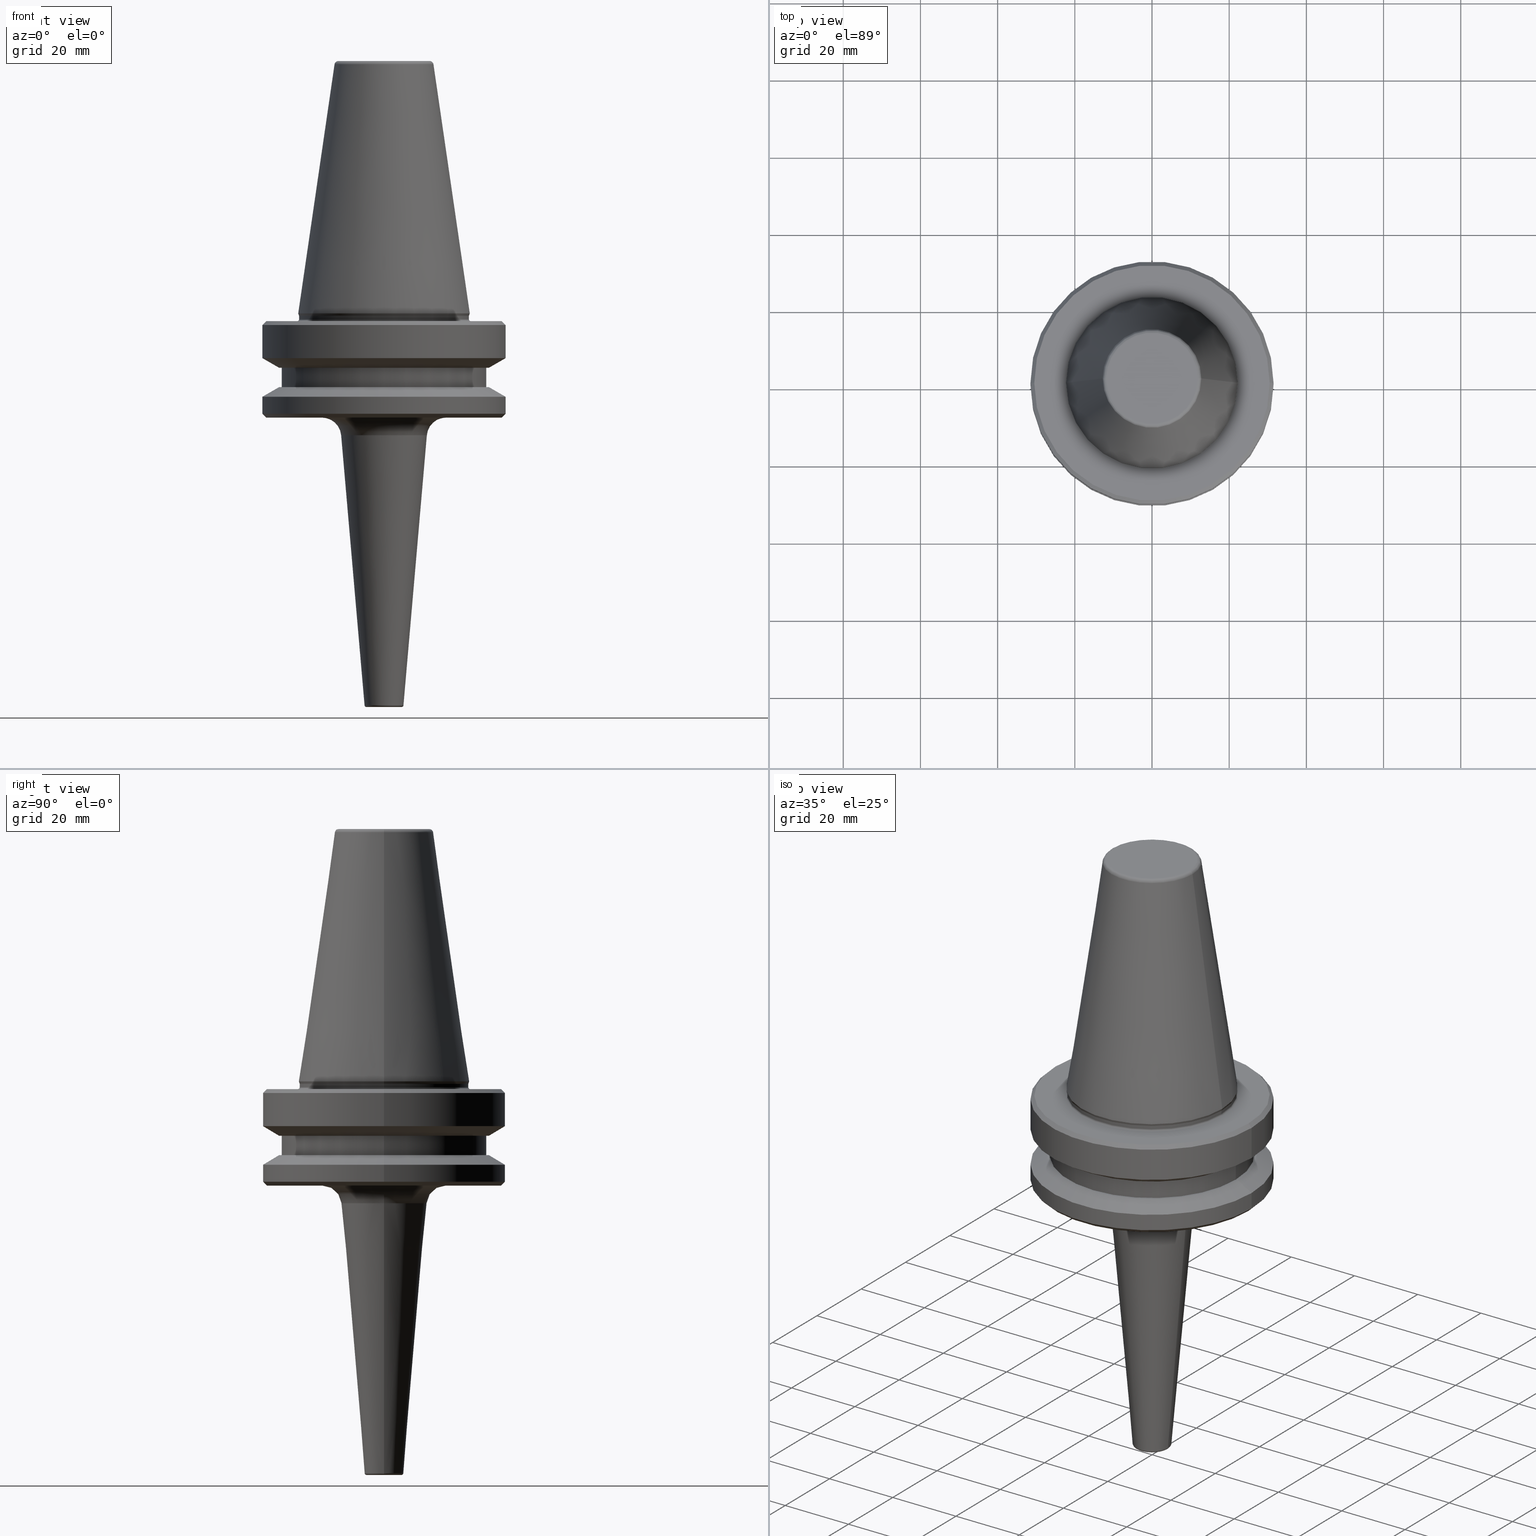
[diagram: canonical four-view strip — front | top / right | iso, engineering-drawing reading convention]
A machine part, canonical four-view strip (front | top / right | iso — engineering-drawing reading convention). The complete STEP part file that produces these views, byte-faithful:
ISO-10303-21;
HEADER;
FILE_DESCRIPTION (( 'STEP AP203' ),
    '1' );
FILE_NAME ('BT40-MCA06 075 AD+B-2.5G 25000 SL.STEP',
    '2019-05-24T09:39:13',
    ( '' ),
    ( '' ),
    'SwSTEP 2.0',
    'SolidWorks 2014',
    '' );
FILE_SCHEMA (( 'CONFIG_CONTROL_DESIGN' ));
ENDSEC;

DATA;
#1 = DIRECTION ( 'NONE',  ( 0.0000000000000000000, 0.0000000000000000000, -1.000000000000000000 ) ) ;
#2 = CARTESIAN_POINT ( 'NONE',  ( -26.50000000000019200, 3.245314017740509400E-015, 6.357346922996331500 ) ) ;
#3 = DIRECTION ( 'NONE',  ( -0.0000000000000000000, -0.0000000000000000000, 1.000000000000000000 ) ) ;
#4 = EDGE_CURVE ( 'NONE', #407, #325, #517, .T. ) ;
#5 = DIRECTION ( 'NONE',  ( -0.7071067811865474600, 0.0000000000000000000, -0.7071067811865475700 ) ) ;
#6 = CYLINDRICAL_SURFACE ( 'NONE', #779, 22.00000000000002100 ) ;
#7 = ORIENTED_EDGE ( 'NONE', *, *, #261, .F. ) ;
#8 = AXIS2_PLACEMENT_3D ( 'NONE', #644, #176, #727 ) ;
#9 = PERSON_AND_ORGANIZATION ( #125, #528 ) ;
#10 = EDGE_LOOP ( 'NONE', ( #1039, #39, #16, #403 ) ) ;
#11 = CC_DESIGN_PERSON_AND_ORGANIZATION_ASSIGNMENT ( #694, #984, ( #634 ) ) ;
#12 = PRODUCT ( 'BT40-MCA06 075 AD+B-2.5G 25000 SL', 'BT40-MCA06 075 AD+B-2.5G 25000 SL', '', ( #46 ) ) ;
#13 = DIRECTION ( 'NONE',  ( 1.000000000000000000, 0.0000000000000000000, 0.0000000000000000000 ) ) ;
#14 = DIRECTION ( 'NONE',  ( 1.000000000000000000, 0.0000000000000000000, 0.0000000000000000000 ) ) ;
#15 = EDGE_CURVE ( 'NONE', #527, #837, #938, .T. ) ;
#16 = ORIENTED_EDGE ( 'NONE', *, *, #937, .F. ) ;
#17 = VERTEX_POINT ( 'NONE', #612 ) ;
#18 = TOROIDAL_SURFACE ( 'NONE', #600, 4.541459068424781100, 0.4999999999996819200 ) ;
#19 = DIRECTION ( 'NONE',  ( 0.0000000000000000000, 0.0000000000000000000, -1.000000000000000000 ) ) ;
#20 = ORIENTED_EDGE ( 'NONE', *, *, #825, .T. ) ;
#21 = VECTOR ( 'NONE', #778, 1000.000000000000100 ) ;
#22 = ORIENTED_EDGE ( 'NONE', *, *, #666, .T. ) ;
#23 = DIRECTION ( 'NONE',  ( 1.224646799147353200E-016, 1.000000000000000000, 0.0000000000000000000 ) ) ;
#24 = FACE_OUTER_BOUND ( 'NONE', #121, .T. ) ;
#25 = CARTESIAN_POINT ( 'NONE',  ( 0.0000000000000000000, 0.0000000000000000000, -67.40000000000034700 ) ) ;
#26 = LINE ( 'NONE', #929, #633 ) ;
#27 = PRODUCT_DEFINITION_SHAPE ( 'NONE', 'NONE',  #634 ) ;
#28 = CC_DESIGN_APPROVAL ( #803, ( #329 ) ) ;
#29 = VECTOR ( 'NONE', #576, 1000.000000000000000 ) ;
#30 = EDGE_CURVE ( 'NONE', #159, #913, #106, .T. ) ;
#31 = DIRECTION ( 'NONE',  ( -1.000000000000000000, 1.224646799147357600E-016, 0.0000000000000000000 ) ) ;
#32 = LOCAL_TIME ( 15, 9, 13.00000000000000000, #247 ) ;
#33 = ORIENTED_EDGE ( 'NONE', *, *, #299, .T. ) ;
#34 = DIRECTION ( 'NONE',  ( -0.0000000000000000000, -0.0000000000000000000, 1.000000000000000000 ) ) ;
#35 = CARTESIAN_POINT ( 'NONE',  ( -31.50000000000008500, 3.857637417314172900E-015, 6.357346922996331500 ) ) ;
#36 = EDGE_LOOP ( 'NONE', ( #555, #388, #525, #611 ) ) ;
#37 = DIRECTION ( 'NONE',  ( 1.000000000000000000, 0.0000000000000000000, 0.0000000000000000000 ) ) ;
#38 = ADVANCED_FACE ( 'NONE', ( #729 ), #256, .T. ) ;
#39 = ORIENTED_EDGE ( 'NONE', *, *, #567, .T. ) ;
#40 = AXIS2_PLACEMENT_3D ( 'NONE', #406, #19, #114 ) ;
#41 = LINE ( 'NONE', #526, #464 ) ;
#42 = ORIENTED_EDGE ( 'NONE', *, *, #547, .T. ) ;
#43 = AXIS2_PLACEMENT_3D ( 'NONE', #25, #921, #190 ) ;
#44 = FACE_OUTER_BOUND ( 'NONE', #643, .T. ) ;
#45 = DIRECTION ( 'NONE',  ( -0.0000000000000000000, -0.0000000000000000000, 1.000000000000000000 ) ) ;
#46 = MECHANICAL_CONTEXT ( 'NONE', #315, 'mechanical' ) ;
#47 = LINE ( 'NONE', #218, #21 ) ;
#48 = CLOSED_SHELL ( 'NONE', ( #462, #950, #146, #807, #793, #962, #411, #629, #780, #1030, #38, #689, #1013, #1031, #978, #328, #839, #904, #1034, #826, #1043, #1027, #1025, #698, #738, #847, #538, #157, #944, #1006, #957, #545, #726, #969, #746, #217, #185, #76 ) ) ;
#49 = ORIENTED_EDGE ( 'NONE', *, *, #589, .T. ) ;
#50 = VERTEX_POINT ( 'NONE', #683 ) ;
#51 = DIRECTION ( 'NONE',  ( -0.0000000000000000000, -0.0000000000000000000, 1.000000000000000000 ) ) ;
#52 = AXIS2_PLACEMENT_3D ( 'NONE', #772, #303, #858 ) ;
#53 = VERTEX_POINT ( 'NONE', #572 ) ;
#54 = CIRCLE ( 'NONE', #313, 11.82266927716813000 ) ;
#55 = AXIS2_PLACEMENT_3D ( 'NONE', #448, #691, #693 ) ;
#56 = DIRECTION ( 'NONE',  ( -0.0000000000000000000, -0.0000000000000000000, 1.000000000000000000 ) ) ;
#57 = ORIENTED_EDGE ( 'NONE', *, *, #816, .T. ) ;
#58 = CC_DESIGN_DATE_AND_TIME_ASSIGNMENT ( #898, #479, ( #634 ) ) ;
#59 = LINE ( 'NONE', #276, #447 ) ;
#60 = DIRECTION ( 'NONE',  ( 0.7071067811865487900, 0.0000000000000000000, 0.7071067811865463500 ) ) ;
#61 = EDGE_CURVE ( 'NONE', #141, #954, #289, .T. ) ;
#62 = DIRECTION ( 'NONE',  ( -0.0000000000000000000, -0.0000000000000000000, 1.000000000000000000 ) ) ;
#63 = CIRCLE ( 'NONE', #539, 27.16962701892322600 ) ;
#64 = EDGE_LOOP ( 'NONE', ( #1022, #721, #706, #454 ) ) ;
#65 = CALENDAR_DATE ( 2019, 24, 5 ) ;
#66 = CARTESIAN_POINT ( 'NONE',  ( 0.0000000000000000000, 0.0000000000000000000, -66.08871321165987900 ) ) ;
#67 = DIRECTION ( 'NONE',  ( 0.0000000000000000000, 0.0000000000000000000, -1.000000000000000000 ) ) ;
#68 = ORIENTED_EDGE ( 'NONE', *, *, #615, .F. ) ;
#69 = DIRECTION ( 'NONE',  ( 0.0000000000000000000, 0.0000000000000000000, -1.000000000000000000 ) ) ;
#70 = AXIS2_PLACEMENT_3D ( 'NONE', #733, #570, #910 ) ;
#71 = AXIS2_PLACEMENT_3D ( 'NONE', #156, #709, #232 ) ;
#72 = ORIENTED_EDGE ( 'NONE', *, *, #458, .T. ) ;
#73 =( LENGTH_UNIT ( ) NAMED_UNIT ( * ) SI_UNIT ( .MILLI., .METRE. ) );
#74 = DIRECTION ( 'NONE',  ( -0.0000000000000000000, -0.0000000000000000000, 1.000000000000000000 ) ) ;
#75 = AXIS2_PLACEMENT_3D ( 'NONE', #764, #680, #762 ) ;
#76 = ADVANCED_FACE ( 'NONE', ( #908 ), #854, .T. ) ;
#77 = FACE_BOUND ( 'NONE', #928, .T. ) ;
#78 = ORIENTED_EDGE ( 'NONE', *, *, #1053, .T. ) ;
#79 = DIRECTION ( 'NONE',  ( 1.000000000000000000, 0.0000000000000000000, 0.0000000000000000000 ) ) ;
#80 = CIRCLE ( 'NONE', #192, 0.4999999999996821400 ) ;
#81 = ORIENTED_EDGE ( 'NONE', *, *, #333, .F. ) ;
#82 = AXIS2_PLACEMENT_3D ( 'NONE', #552, #92, #631 ) ;
#83 = CIRCLE ( 'NONE', #712, 27.16962701892322600 ) ;
#84 = DIRECTION ( 'NONE',  ( -0.0000000000000000000, -0.0000000000000000000, 1.000000000000000000 ) ) ;
#85 = EDGE_LOOP ( 'NONE', ( #696, #934, #701, #461 ) ) ;
#86 = CARTESIAN_POINT ( 'NONE',  ( 0.0000000000000000000, 0.0000000000000000000, -87.00014200631733300 ) ) ;
#87 = DIRECTION ( 'NONE',  ( -0.0000000000000000000, -0.0000000000000000000, 1.000000000000000000 ) ) ;
#88 = VERTEX_POINT ( 'NONE', #228 ) ;
#89 = AXIS2_PLACEMENT_3D ( 'NONE', #548, #87, #628 ) ;
#90 = ORIENTED_EDGE ( 'NONE', *, *, #323, .T. ) ;
#91 = CIRCLE ( 'NONE', #161, 31.50000000000008500 ) ;
#92 = DIRECTION ( 'NONE',  ( -0.0000000000000000000, -0.0000000000000000000, 1.000000000000000000 ) ) ;
#93 = AXIS2_PLACEMENT_3D ( 'NONE', #392, #980, #474 ) ;
#94 = PERSON_AND_ORGANIZATION_ROLE ( 'creator' ) ;
#95 = CARTESIAN_POINT ( 'NONE',  ( -12.81220206925736900, 0.0000000000000000000, -0.8556918111122247000 ) ) ;
#96 = AXIS2_PLACEMENT_3D ( 'NONE', #529, #62, #608 ) ;
#97 = CARTESIAN_POINT ( 'NONE',  ( 0.0000000000000000000, 0.0000000000000000000, -79.50000000000012800 ) ) ;
#98 = CIRCLE ( 'NONE', #284, 0.4000000000001502400 ) ;
#99 = DATE_AND_TIME ( #306, #510 ) ;
#100 = EDGE_LOOP ( 'NONE', ( #676, #42, #882, #549 ) ) ;
#101 = ORIENTED_EDGE ( 'NONE', *, *, #551, .T. ) ;
#102 = EDGE_CURVE ( 'NONE', #283, #184, #880, .T. ) ;
#103 = ORIENTED_EDGE ( 'NONE', *, *, #891, .T. ) ;
#104 = VERTEX_POINT ( 'NONE', #343 ) ;
#105 = VECTOR ( 'NONE', #429, 1000.000000000000100 ) ;
#106 = CIRCLE ( 'NONE', #267, 26.50000000000019200 ) ;
#107 = ORIENTED_EDGE ( 'NONE', *, *, #268, .T. ) ;
#108 = DIRECTION ( 'NONE',  ( -0.0000000000000000000, -0.0000000000000000000, 1.000000000000000000 ) ) ;
#109 = FACE_BOUND ( 'NONE', #792, .T. ) ;
#110 = AXIS2_PLACEMENT_3D ( 'NONE', #708, #948, #602 ) ;
#111 = EDGE_CURVE ( 'NONE', #428, #1001, #466, .T. ) ;
#112 = DIRECTION ( 'NONE',  ( -0.0000000000000000000, -0.0000000000000000000, 1.000000000000000000 ) ) ;
#113 = AXIS2_PLACEMENT_3D ( 'NONE', #715, #235, #797 ) ;
#114 = DIRECTION ( 'NONE',  ( -1.000000000000000000, 0.0000000000000000000, 0.0000000000000000000 ) ) ;
#115 = EDGE_LOOP ( 'NONE', ( #681, #262 ) ) ;
#116 = ORIENTED_EDGE ( 'NONE', *, *, #599, .T. ) ;
#117 = AXIS2_PLACEMENT_3D ( 'NONE', #180, #112, #257 ) ;
#118 = ORIENTED_EDGE ( 'NONE', *, *, #323, .F. ) ;
#119 = AXIS2_PLACEMENT_3D ( 'NONE', #312, #69, #869 ) ;
#120 = CARTESIAN_POINT ( 'NONE',  ( 0.0000000000000000000, 0.0000000000000000000, -0.8556918111122247000 ) ) ;
#121 = EDGE_LOOP ( 'NONE', ( #560, #408, #307, #220 ) ) ;
#122 = APPROVAL ( #804, 'UNSPECIFIED' ) ;
#123 = CARTESIAN_POINT ( 'NONE',  ( -31.50000000000008500, 3.857637417314172900E-015, -76.99985799368391800 ) ) ;
#124 = DIRECTION ( 'NONE',  ( 0.0000000000000000000, -1.000000000000000000, 0.0000000000000000000 ) ) ;
#125 = PERSON ( 'UNSPECIFIED', 'UNSPECIFIED', 'UNSPECIFIED', ('UNSPECIFIED'), ('UNSPECIFIED'), ('UNSPECIFIED') ) ;
#126 = EDGE_LOOP ( 'NONE', ( #977, #897, #995, #909 ) ) ;
#127 = PERSON_AND_ORGANIZATION ( #125, #528 ) ;
#128 = CARTESIAN_POINT ( 'NONE',  ( 0.0000000000000000000, 0.0000000000000000000, -97.40000000000807700 ) ) ;
#129 = VERTEX_POINT ( 'NONE', #617 ) ;
#130 = TOROIDAL_SURFACE ( 'NONE', #554, 16.08540931575495800, 5.000000000000004400 ) ;
#131 = ORIENTED_EDGE ( 'NONE', *, *, #1008, .T. ) ;
#132 = FACE_OUTER_BOUND ( 'NONE', #265, .T. ) ;
#133 = DIRECTION ( 'NONE',  ( -0.0000000000000000000, -0.0000000000000000000, 1.000000000000000000 ) ) ;
#134 = VERTEX_POINT ( 'NONE', #879 ) ;
#135 = ORIENTED_EDGE ( 'NONE', *, *, #767, .T. ) ;
#136 = CARTESIAN_POINT ( 'NONE',  ( 31.50000000000008500, 0.0000000000000000000, 6.357346922996331500 ) ) ;
#137 = EDGE_CURVE ( 'NONE', #141, #50, #80, .T. ) ;
#138 = ORIENTED_EDGE ( 'NONE', *, *, #773, .T. ) ;
#139 = DIRECTION ( 'NONE',  ( 0.0000000000000000000, -1.000000000000000000, 0.0000000000000000000 ) ) ;
#140 = CARTESIAN_POINT ( 'NONE',  ( -30.49999999999997200, 0.0000000000000000000, -67.40000000000034700 ) ) ;
#141 = VERTEX_POINT ( 'NONE', #212 ) ;
#142 = CYLINDRICAL_SURFACE ( 'NONE', #75, 31.50000000000008500 ) ;
#143 = DIRECTION ( 'NONE',  ( 0.7071067811865474600, 8.659560562354931600E-017, -0.7071067811865475700 ) ) ;
#144 = ORIENTED_EDGE ( 'NONE', *, *, #551, .F. ) ;
#145 = LOCAL_TIME ( 15, 9, 13.00000000000000000, #356 ) ;
#146 = ADVANCED_FACE ( 'NONE', ( #677 ), #494, .T. ) ;
#147 = DIRECTION ( 'NONE',  ( 1.000000000000000000, 0.0000000000000000000, 0.0000000000000000000 ) ) ;
#148 = DIRECTION ( 'NONE',  ( 0.0000000000000000000, 0.0000000000000000000, 1.000000000000000000 ) ) ;
#149 = CIRCLE ( 'NONE', #71, 12.81220206925736900 ) ;
#150 = VECTOR ( 'NONE', #251, 1000.000000000000000 ) ;
#151 =( NAMED_UNIT ( * ) SI_UNIT ( $, .STERADIAN. ) SOLID_ANGLE_UNIT ( ) );
#152 = CONICAL_SURFACE ( 'NONE', #823, 22.22499999999993700, 0.3490658503994643600 ) ;
#153 = AXIS2_PLACEMENT_3D ( 'NONE', #743, #274, #827 ) ;
#154 = CARTESIAN_POINT ( 'NONE',  ( 11.10408196984262800, 0.0000000000000000000, -96.96828496336233600 ) ) ;
#155 = AXIS2_PLACEMENT_3D ( 'NONE', #956, #1, #562 ) ;
#156 = CARTESIAN_POINT ( 'NONE',  ( 0.0000000000000000000, 0.0000000000000000000, -0.8556918111122247000 ) ) ;
#157 = ADVANCED_FACE ( 'NONE', ( #503, #44 ), #883, .F. ) ;
#158 = DIRECTION ( 'NONE',  ( 1.000000000000000000, 0.0000000000000000000, 0.0000000000000000000 ) ) ;
#159 = VERTEX_POINT ( 'NONE', #160 ) ;
#160 = CARTESIAN_POINT ( 'NONE',  ( 26.50000000000019200, 0.0000000000000000000, -84.50000000000068200 ) ) ;
#161 = AXIS2_PLACEMENT_3D ( 'NONE', #662, #187, #741 ) ;
#162 = AXIS2_PLACEMENT_3D ( 'NONE', #163, #796, #1052 ) ;
#163 = CARTESIAN_POINT ( 'NONE',  ( 0.0000000000000000000, 0.0000000000000000000, -66.90000000000040400 ) ) ;
#164 = AXIS2_PLACEMENT_3D ( 'NONE', #365, #593, #37 ) ;
#165 = CC_DESIGN_PERSON_AND_ORGANIZATION_ASSIGNMENT ( #334, #238, ( #12 ) ) ;
#166 = ORIENTED_EDGE ( 'NONE', *, *, #647, .T. ) ;
#167 = FACE_BOUND ( 'NONE', #285, .T. ) ;
#168 = SECURITY_CLASSIFICATION_LEVEL ( 'unclassified' ) ;
#169 = ORIENTED_EDGE ( 'NONE', *, *, #229, .T. ) ;
#170 = DIRECTION ( 'NONE',  ( 1.000000000000000000, 0.0000000000000000000, 0.0000000000000000000 ) ) ;
#171 = CARTESIAN_POINT ( 'NONE',  ( -31.50000000000008500, 3.857637417314172900E-015, -87.00014200631733300 ) ) ;
#172 = DIRECTION ( 'NONE',  ( -0.0000000000000000000, -0.0000000000000000000, 1.000000000000000000 ) ) ;
#173 = UNCERTAINTY_MEASURE_WITH_UNIT (LENGTH_MEASURE( 1.000000000000000100E-005 ), #73, 'distance_accuracy_value', 'NONE');
#174 = FACE_OUTER_BOUND ( 'NONE', #700, .T. ) ;
#175 = AXIS2_PLACEMENT_3D ( 'NONE', #895, #322, #1050 ) ;
#176 = DIRECTION ( 'NONE',  ( -0.0000000000000000000, -0.0000000000000000000, 1.000000000000000000 ) ) ;
#177 = CIRCLE ( 'NONE', #415, 16.08540931575495800 ) ;
#178 = EDGE_LOOP ( 'NONE', ( #868, #248, #776, #845 ) ) ;
#179 = AXIS2_PLACEMENT_3D ( 'NONE', #945, #849, #205 ) ;
#180 = CARTESIAN_POINT ( 'NONE',  ( 0.0000000000000000000, 0.0000000000000000000, -96.96828496336233600 ) ) ;
#181 = EDGE_CURVE ( 'NONE', #104, #309, #301, .T. ) ;
#182 = VERTEX_POINT ( 'NONE', #806 ) ;
#183 = DIRECTION ( 'NONE',  ( -0.0000000000000000000, -0.0000000000000000000, 1.000000000000000000 ) ) ;
#184 = VERTEX_POINT ( 'NONE', #171 ) ;
#185 = ADVANCED_FACE ( 'NONE', ( #919 ), #953, .T. ) ;
#186 = DIRECTION ( 'NONE',  ( 1.000000000000000000, 0.0000000000000000000, 0.0000000000000000000 ) ) ;
#187 = DIRECTION ( 'NONE',  ( -0.0000000000000000000, -0.0000000000000000000, 1.000000000000000000 ) ) ;
#188 = FACE_OUTER_BOUND ( 'NONE', #623, .T. ) ;
#189 = CARTESIAN_POINT ( 'NONE',  ( 31.50000000000008500, 3.857637417314172900E-015, -87.00014200631733300 ) ) ;
#190 = DIRECTION ( 'NONE',  ( -1.000000000000000000, 0.0000000000000000000, 0.0000000000000000000 ) ) ;
#191 = DIRECTION ( 'NONE',  ( -0.0000000000000000000, -0.0000000000000000000, 1.000000000000000000 ) ) ;
#192 = AXIS2_PLACEMENT_3D ( 'NONE', #391, #979, #472 ) ;
#193 = CARTESIAN_POINT ( 'NONE',  ( 31.50000000000008500, 0.0000000000000000000, -76.99985799368391800 ) ) ;
#194 = FACE_OUTER_BOUND ( 'NONE', #1004, .T. ) ;
#195 = ORIENTED_EDGE ( 'NONE', *, *, #393, .F. ) ;
#196 = AXIS2_PLACEMENT_3D ( 'NONE', #930, #828, #358 ) ;
#197 = CARTESIAN_POINT ( 'NONE',  ( 0.0000000000000000000, 0.0000000000000000000, -66.08871321165987900 ) ) ;
#198 = EDGE_LOOP ( 'NONE', ( #72, #947, #68, #1046 ) ) ;
#199 = CALENDAR_DATE ( 2019, 24, 5 ) ;
#200 = CARTESIAN_POINT ( 'NONE',  ( 0.0000000000000000000, 2.668770043212648300E-013, -92.40000000000806300 ) ) ;
#201 = CARTESIAN_POINT ( 'NONE',  ( 0.0000000000000000000, 0.0000000000000000000, -87.00014200631733300 ) ) ;
#202 = AXIS2_PLACEMENT_3D ( 'NONE', #86, #627, #158 ) ;
#203 = VERTEX_POINT ( 'NONE', #718 ) ;
#204 = AXIS2_PLACEMENT_3D ( 'NONE', #469, #1047, #546 ) ;
#205 = DIRECTION ( 'NONE',  ( 1.000000000000000000, 0.0000000000000000000, 0.0000000000000000000 ) ) ;
#206 = CARTESIAN_POINT ( 'NONE',  ( 0.0000000000000000000, 0.0000000000000000000, 6.357346922996331500 ) ) ;
#207 = DIRECTION ( 'NONE',  ( -0.0000000000000000000, -0.0000000000000000000, 1.000000000000000000 ) ) ;
#208 = EDGE_LOOP ( 'NONE', ( #475, #621, #736, #324 ) ) ;
#209 = LINE ( 'NONE', #319, #817 ) ;
#210 = CARTESIAN_POINT ( 'NONE',  ( 0.0000000000000000000, 0.0000000000000000000, -167.4000000000080500 ) ) ;
#211 = EDGE_CURVE ( 'NONE', #837, #325, #91, .T. ) ;
#212 = CARTESIAN_POINT ( 'NONE',  ( -4.541459068424781100, 5.866701641088770800E-016, -167.4000000000080500 ) ) ;
#213 = LINE ( 'NONE', #838, #630 ) ;
#214 = CC_DESIGN_SECURITY_CLASSIFICATION ( #713, ( #329 ) ) ;
#215 = AXIS2_PLACEMENT_3D ( 'NONE', #914, #541, #79 ) ;
#216 = CARTESIAN_POINT ( 'NONE',  ( 30.49999999999997200, 3.735172737399423600E-015, -67.40000000000034700 ) ) ;
#217 = ADVANCED_FACE ( 'NONE', ( #714 ), #271, .T. ) ;
#218 = CARTESIAN_POINT ( 'NONE',  ( -31.50000000000008500, 3.857637417314172900E-015, -76.99985799368391800 ) ) ;
#219 = CIRCLE ( 'NONE', #967, 22.00000000000002100 ) ;
#220 = ORIENTED_EDGE ( 'NONE', *, *, #647, .F. ) ;
#221 = CARTESIAN_POINT ( 'NONE',  ( 0.0000000000000000000, 0.0000000000000000000, 0.0000000000000000000 ) ) ;
#222 = AXIS2_PLACEMENT_3D ( 'NONE', #387, #56, #604 ) ;
#223 = DIRECTION ( 'NONE',  ( -0.0000000000000000000, -0.0000000000000000000, 1.000000000000000000 ) ) ;
#224 = PERSON_AND_ORGANIZATION ( #125, #528 ) ;
#225 = EDGE_LOOP ( 'NONE', ( #646, #866, #425, #7 ) ) ;
#226 = APPLICATION_PROTOCOL_DEFINITION ( 'international standard', 'config_control_design', 1994, #315 ) ;
#227 = CARTESIAN_POINT ( 'NONE',  ( 0.0000000000000000000, 0.0000000000000000000, -96.96828496336233600 ) ) ;
#228 = CARTESIAN_POINT ( 'NONE',  ( 27.16962701892322600, 0.0000000000000000000, -79.50000000000012800 ) ) ;
#229 = EDGE_CURVE ( 'NONE', #344, #711, #272, .T. ) ;
#230 = FACE_OUTER_BOUND ( 'NONE', #414, .T. ) ;
#231 = EDGE_LOOP ( 'NONE', ( #955, #626, #90, #590 ) ) ;
#232 = DIRECTION ( 'NONE',  ( 1.000000000000000000, 0.0000000000000000000, 0.0000000000000000000 ) ) ;
#233 = FACE_OUTER_BOUND ( 'NONE', #575, .T. ) ;
#234 = FACE_OUTER_BOUND ( 'NONE', #981, .T. ) ;
#235 = DIRECTION ( 'NONE',  ( -0.0000000000000000000, -0.0000000000000000000, 1.000000000000000000 ) ) ;
#236 = EDGE_CURVE ( 'NONE', #913, #159, #690, .T. ) ;
#237 = AXIS2_PLACEMENT_3D ( 'NONE', #422, #1007, #509 ) ;
#238 = PERSON_AND_ORGANIZATION_ROLE ( 'design_owner' ) ;
#239 = CIRCLE ( 'NONE', #499, 11.10408196984262800 ) ;
#240 = CARTESIAN_POINT ( 'NONE',  ( 0.0000000000000000000, 0.0000000000000000000, -92.40000000000803500 ) ) ;
#241 = DATE_TIME_ROLE ( 'classification_date' ) ;
#242 = CARTESIAN_POINT ( 'NONE',  ( 30.49999999999997200, 3.796405077356798300E-015, -67.40000000000034700 ) ) ;
#243 = CARTESIAN_POINT ( 'NONE',  ( 22.00000000000002100, 0.0000000000000000000, -66.90000000000040400 ) ) ;
#244 = DIRECTION ( 'NONE',  ( -0.0000000000000000000, -0.0000000000000000000, 1.000000000000000000 ) ) ;
#245 = LINE ( 'NONE', #189, #29 ) ;
#246 = AXIS2_PLACEMENT_3D ( 'NONE', #942, #432, #1020 ) ;
#247 = COORDINATED_UNIVERSAL_TIME_OFFSET ( 5, 30, .AHEAD. ) ;
#248 = ORIENTED_EDGE ( 'NONE', *, *, #399, .T. ) ;
#249 = EDGE_CURVE ( 'NONE', #159, #134, #59, .T. ) ;
#250 = ORIENTED_EDGE ( 'NONE', *, *, #346, .F. ) ;
#251 = DIRECTION ( 'NONE',  ( -0.3420201433262311000, 4.188538737683878900E-017, 0.9396926207857037000 ) ) ;
#252 = ORIENTED_EDGE ( 'NONE', *, *, #624, .F. ) ;
#253 = VERTEX_POINT ( 'NONE', #580 ) ;
#254 = CIRCLE ( 'NONE', #96, 26.50000000000019200 ) ;
#255 = ORIENTED_EDGE ( 'NONE', *, *, #536, .F. ) ;
#256 = CONICAL_SURFACE ( 'NONE', #656, 31.50000000000008500, 1.047197551196597400 ) ;
#257 = DIRECTION ( 'NONE',  ( 1.000000000000000000, 0.0000000000000000000, 0.0000000000000000000 ) ) ;
#258 = CIRCLE ( 'NONE', #742, 22.49999999999996400 ) ;
#259 = AXIS2_PLACEMENT_3D ( 'NONE', #986, #480, #1055 ) ;
#260 = VERTEX_POINT ( 'NONE', #243 ) ;
#261 = EDGE_CURVE ( 'NONE', #685, #300, #239, .T. ) ;
#262 = ORIENTED_EDGE ( 'NONE', *, *, #399, .F. ) ;
#263 = DIRECTION ( 'NONE',  ( -0.0000000000000000000, -0.0000000000000000000, 1.000000000000000000 ) ) ;
#264 = PLANE ( 'NONE',  #390 ) ;
#265 = EDGE_LOOP ( 'NONE', ( #907, #138, #288, #255 ) ) ;
#266 = FACE_OUTER_BOUND ( 'NONE', #208, .T. ) ;
#267 = AXIS2_PLACEMENT_3D ( 'NONE', #441, #997, #14 ) ;
#268 = EDGE_CURVE ( 'NONE', #253, #134, #663, .T. ) ;
#269 = CARTESIAN_POINT ( 'NONE',  ( 0.0000000000000000000, 0.0000000000000000000, -65.95190515433003500 ) ) ;
#270 = ORIENTED_EDGE ( 'NONE', *, *, #641, .T. ) ;
#271 = PLANE ( 'NONE',  #531 ) ;
#272 = LINE ( 'NONE', #418, #476 ) ;
#273 = CC_DESIGN_APPROVAL ( #122, ( #713 ) ) ;
#274 = DIRECTION ( 'NONE',  ( -0.0000000000000000000, -0.0000000000000000000, 1.000000000000000000 ) ) ;
#275 = CARTESIAN_POINT ( 'NONE',  ( 0.0000000000000000000, 0.0000000000000000000, -65.40000000000057400 ) ) ;
#276 = CARTESIAN_POINT ( 'NONE',  ( 26.50000000000019200, 0.0000000000000000000, 6.357346922996331500 ) ) ;
#277 = EDGE_CURVE ( 'NONE', #260, #104, #26, .T. ) ;
#278 = DIRECTION ( 'NONE',  ( 1.000000000000000000, 0.0000000000000000000, 0.0000000000000000000 ) ) ;
#279 = CIRCLE ( 'NONE', #941, 5.000000000000004400 ) ;
#280 = CARTESIAN_POINT ( 'NONE',  ( 0.0000000000000000000, 0.0000000000000000000, -96.96828496336233600 ) ) ;
#281 = EDGE_LOOP ( 'NONE', ( #460, #903, #489, #932 ) ) ;
#282 = LOCAL_TIME ( 15, 9, 13.00000000000000000, #486 ) ;
#283 = VERTEX_POINT ( 'NONE', #1042 ) ;
#284 = AXIS2_PLACEMENT_3D ( 'NONE', #442, #1026, #524 ) ;
#285 = EDGE_LOOP ( 'NONE', ( #297, #649 ) ) ;
#286 = DIRECTION ( 'NONE',  ( 1.000000000000000000, 0.0000000000000000000, 0.0000000000000000000 ) ) ;
#287 = LINE ( 'NONE', #35, #906 ) ;
#288 = ORIENTED_EDGE ( 'NONE', *, *, #389, .T. ) ;
#289 = CIRCLE ( 'NONE', #215, 4.541459068424781100 ) ;
#290 = EDGE_LOOP ( 'NONE', ( #1017, #798, #652, #848 ) ) ;
#291 = DIRECTION ( 'NONE',  ( 0.0000000000000000000, 0.0000000000000000000, -1.000000000000000000 ) ) ;
#292 = FACE_OUTER_BOUND ( 'NONE', #10, .T. ) ;
#293 = EDGE_LOOP ( 'NONE', ( #588, #410, #573, #493 ) ) ;
#294 = DIRECTION ( 'NONE',  ( -0.0000000000000000000, -0.0000000000000000000, 1.000000000000000000 ) ) ;
#295 = DIRECTION ( 'NONE',  ( -0.0000000000000000000, -0.0000000000000000000, 1.000000000000000000 ) ) ;
#296 = DIRECTION ( 'NONE',  ( -0.0000000000000000000, -0.0000000000000000000, 1.000000000000000000 ) ) ;
#297 = ORIENTED_EDGE ( 'NONE', *, *, #30, .F. ) ;
#298 = DIRECTION ( 'NONE',  ( 1.000000000000000000, 0.0000000000000000000, 0.0000000000000000000 ) ) ;
#299 = EDGE_CURVE ( 'NONE', #300, #685, #959, .T. ) ;
#300 = VERTEX_POINT ( 'NONE', #154 ) ;
#301 = CIRCLE ( 'NONE', #175, 22.00000000000002100 ) ;
#302 = EDGE_CURVE ( 'NONE', #17, #732, #890, .T. ) ;
#303 = DIRECTION ( 'NONE',  ( -0.0000000000000000000, -0.0000000000000000000, 1.000000000000000000 ) ) ;
#304 = CARTESIAN_POINT ( 'NONE',  ( 0.0000000000000000000, 0.0000000000000000000, -66.90000000000040400 ) ) ;
#305 = FACE_OUTER_BOUND ( 'NONE', #100, .T. ) ;
#306 = CALENDAR_DATE ( 2019, 24, 5 ) ;
#307 = ORIENTED_EDGE ( 'NONE', *, *, #102, .T. ) ;
#308 = AXIS2_PLACEMENT_3D ( 'NONE', #595, #45, #368 ) ;
#309 = VERTEX_POINT ( 'NONE', #749 ) ;
#310 = DIRECTION ( 'NONE',  ( -0.0000000000000000000, -0.0000000000000000000, 1.000000000000000000 ) ) ;
#311 = EDGE_CURVE ( 'NONE', #50, #670, #507, .T. ) ;
#312 = CARTESIAN_POINT ( 'NONE',  ( 0.0000000000000000000, 0.0000000000000000000, -67.40000000000034700 ) ) ;
#313 = AXIS2_PLACEMENT_3D ( 'NONE', #360, #931, #426 ) ;
#314 = CIRCLE ( 'NONE', #364, 0.4999999999996951300 ) ;
#315 = APPLICATION_CONTEXT ( 'configuration controlled 3d designs of mechanical parts and assemblies' ) ;
#316 = VECTOR ( 'NONE', #207, 1000.000000000000000 ) ;
#317 = ORIENTED_EDGE ( 'NONE', *, *, #816, .F. ) ;
#318 = FACE_OUTER_BOUND ( 'NONE', #115, .T. ) ;
#319 = CARTESIAN_POINT ( 'NONE',  ( -31.50000000000008500, 3.857637417314172900E-015, -91.40000000000037500 ) ) ;
#320 = ORIENTED_EDGE ( 'NONE', *, *, #717, .F. ) ;
#321 = DIRECTION ( 'NONE',  ( 1.000000000000000000, 0.0000000000000000000, 0.0000000000000000000 ) ) ;
#322 = DIRECTION ( 'NONE',  ( -0.0000000000000000000, -0.0000000000000000000, 1.000000000000000000 ) ) ;
#323 = EDGE_CURVE ( 'NONE', #428, #104, #98, .T. ) ;
#324 = ORIENTED_EDGE ( 'NONE', *, *, #302, .F. ) ;
#325 = VERTEX_POINT ( 'NONE', #878 ) ;
#326 = CARTESIAN_POINT ( 'NONE',  ( 0.0000000000000000000, 0.0000000000000000000, 6.357346922996331500 ) ) ;
#327 = ORIENTED_EDGE ( 'NONE', *, *, #236, .T. ) ;
#328 = ADVANCED_FACE ( 'NONE', ( #925 ), #719, .F. ) ;
#329 = PRODUCT_DEFINITION_FORMATION_WITH_SPECIFIED_SOURCE ( 'ANY', '', #12, .NOT_KNOWN. ) ;
#330 = APPLICATION_PROTOCOL_DEFINITION ( 'international standard', 'config_control_design', 1994, #800 ) ;
#331 = DIRECTION ( 'NONE',  ( 1.000000000000000000, 0.0000000000000000000, 0.0000000000000000000 ) ) ;
#332 = ORIENTED_EDGE ( 'NONE', *, *, #261, .T. ) ;
#333 = EDGE_CURVE ( 'NONE', #373, #203, #692, .T. ) ;
#334 = PERSON_AND_ORGANIZATION ( #125, #528 ) ;
#335 = APPROVAL_ROLE ( '' ) ;
#336 = CONICAL_SURFACE ( 'NONE', #179, 31.50000000000008500, 0.7853981633974500600 ) ;
#337 = CARTESIAN_POINT ( 'NONE',  ( 0.0000000000000000000, 0.0000000000000000000, -68.40000000000046000 ) ) ;
#338 = LINE ( 'NONE', #216, #846 ) ;
#339 = CIRCLE ( 'NONE', #259, 22.22499999999993700 ) ;
#340 = EDGE_LOOP ( 'NONE', ( #195, #917, #166, #49 ) ) ;
#341 = PLANE ( 'NONE',  #70 ) ;
#342 = ORIENTED_EDGE ( 'NONE', *, *, #536, .T. ) ;
#343 = CARTESIAN_POINT ( 'NONE',  ( 22.00000000000002100, 0.0000000000000000000, -66.08871321165987900 ) ) ;
#344 = VERTEX_POINT ( 'NONE', #370 ) ;
#345 = DIRECTION ( 'NONE',  ( -1.000000000000000000, 0.0000000000000000000, -0.0000000000000000000 ) ) ;
#346 = EDGE_CURVE ( 'NONE', #344, #659, #483, .T. ) ;
#347 = DIRECTION ( 'NONE',  ( 0.0000000000000000000, -1.000000000000000000, 0.0000000000000000000 ) ) ;
#348 = DIRECTION ( 'NONE',  ( 1.000000000000000000, 0.0000000000000000000, 0.0000000000000000000 ) ) ;
#349 = EDGE_CURVE ( 'NONE', #129, #300, #279, .T. ) ;
#350 = AXIS2_PLACEMENT_3D ( 'NONE', #383, #971, #459 ) ;
#351 = DIRECTION ( 'NONE',  ( 0.0000000000000000000, 0.0000000000000000000, -1.000000000000000000 ) ) ;
#352 = VERTEX_POINT ( 'NONE', #446 ) ;
#353 = DIRECTION ( 'NONE',  ( -0.0000000000000000000, -0.0000000000000000000, 1.000000000000000000 ) ) ;
#354 = DIRECTION ( 'NONE',  ( -0.0000000000000000000, -0.0000000000000000000, 1.000000000000000000 ) ) ;
#355 = EDGE_LOOP ( 'NONE', ( #385, #739, #787, #118 ) ) ;
#356 = COORDINATED_UNIVERSAL_TIME_OFFSET ( 5, 30, .AHEAD. ) ;
#357 = DIRECTION ( 'NONE',  ( 1.000000000000000000, 0.0000000000000000000, 0.0000000000000000000 ) ) ;
#358 = DIRECTION ( 'NONE',  ( 1.000000000000000000, 0.0000000000000000000, 0.0000000000000000000 ) ) ;
#359 =( GEOMETRIC_REPRESENTATION_CONTEXT ( 3 ) GLOBAL_UNCERTAINTY_ASSIGNED_CONTEXT ( ( #173 ) ) GLOBAL_UNIT_ASSIGNED_CONTEXT ( ( #73, #614, #151 ) ) REPRESENTATION_CONTEXT ( 'NONE', 'WORKASPACE' ) );
#360 = CARTESIAN_POINT ( 'NONE',  ( 0.0000000000000000000, 0.0000000000000000000, -4.440892098500626200E-013 ) ) ;
#361 = CIRCLE ( 'NONE', #237, 5.000000000000004400 ) ;
#362 = LINE ( 'NONE', #565, #150 ) ;
#363 = DIRECTION ( 'NONE',  ( 0.0000000000000000000, -1.000000000000000000, 0.0000000000000000000 ) ) ;
#364 = AXIS2_PLACEMENT_3D ( 'NONE', #834, #363, #935 ) ;
#365 = CARTESIAN_POINT ( 'NONE',  ( 0.0000000000000000000, 0.0000000000000000000, 6.357346922996331500 ) ) ;
#366 = LINE ( 'NONE', #2, #760 ) ;
#367 = DIRECTION ( 'NONE',  ( 1.000000000000000000, 0.0000000000000000000, 0.0000000000000000000 ) ) ;
#368 = DIRECTION ( 'NONE',  ( 1.000000000000000000, 0.0000000000000000000, 0.0000000000000000000 ) ) ;
#369 = AXIS2_PLACEMENT_3D ( 'NONE', #210, #770, #298 ) ;
#370 = CARTESIAN_POINT ( 'NONE',  ( 12.81220206925736900, 2.145409868259749100E-015, -0.8556918111122247000 ) ) ;
#371 = ORIENTED_EDGE ( 'NONE', *, *, #211, .F. ) ;
#372 = DIRECTION ( 'NONE',  ( -0.0000000000000000000, -0.0000000000000000000, 1.000000000000000000 ) ) ;
#373 = VERTEX_POINT ( 'NONE', #686 ) ;
#374 = CARTESIAN_POINT ( 'NONE',  ( -31.50000000000008500, 3.857637417314172900E-015, 6.357346922996331500 ) ) ;
#375 = CYLINDRICAL_SURFACE ( 'NONE', #831, 26.50000000000019200 ) ;
#376 = DIRECTION ( 'NONE',  ( 1.000000000000000000, 0.0000000000000000000, 0.0000000000000000000 ) ) ;
#377 = ORIENTED_EDGE ( 'NONE', *, *, #813, .F. ) ;
#378 = CARTESIAN_POINT ( 'NONE',  ( 4.541459068424781100, 0.0000000000000000000, -167.4000000000080500 ) ) ;
#379 = LINE ( 'NONE', #193, #105 ) ;
#380 = DIRECTION ( 'NONE',  ( 1.000000000000000000, 0.0000000000000000000, 0.0000000000000000000 ) ) ;
#381 = CARTESIAN_POINT ( 'NONE',  ( 0.0000000000000000000, 0.0000000000000000000, -67.40000000000034700 ) ) ;
#382 = EDGE_CURVE ( 'NONE', #670, #300, #665, .T. ) ;
#383 = CARTESIAN_POINT ( 'NONE',  ( -22.49999999999996400, 2.755455298081540400E-015, -66.90000000000040400 ) ) ;
#384 = CIRCLE ( 'NONE', #799, 31.50000000000008500 ) ;
#385 = ORIENTED_EDGE ( 'NONE', *, *, #515, .F. ) ;
#386 = CC_DESIGN_APPROVAL ( #419, ( #634 ) ) ;
#387 = CARTESIAN_POINT ( 'NONE',  ( 0.0000000000000000000, 0.0000000000000000000, -87.00014200631733300 ) ) ;
#388 = ORIENTED_EDGE ( 'NONE', *, *, #717, .T. ) ;
#389 = EDGE_CURVE ( 'NONE', #918, #53, #894, .T. ) ;
#390 = AXIS2_PLACEMENT_3D ( 'NONE', #657, #815, #345 ) ;
#391 = CARTESIAN_POINT ( 'NONE',  ( -4.541459068424781100, 5.561683311605128300E-016, -166.9000000000083600 ) ) ;
#392 = CARTESIAN_POINT ( 'NONE',  ( 0.0000000000000000000, 0.0000000000000000000, -76.99985799368391800 ) ) ;
#393 = EDGE_CURVE ( 'NONE', #485, #283, #245, .T. ) ;
#394 = CARTESIAN_POINT ( 'NONE',  ( 0.0000000000000000000, 0.0000000000000000000, -92.40000000000807700 ) ) ;
#395 = AXIS2_PLACEMENT_3D ( 'NONE', #765, #294, #850 ) ;
#396 = FACE_OUTER_BOUND ( 'NONE', #688, .T. ) ;
#397 = APPROVAL_ROLE ( '' ) ;
#398 = DIRECTION ( 'NONE',  ( -0.8660254037844332700, 0.0000000000000000000, -0.5000000000000093300 ) ) ;
#399 = EDGE_CURVE ( 'NONE', #679, #88, #63, .T. ) ;
#400 = CARTESIAN_POINT ( 'NONE',  ( 22.02412295168553100, 0.0000000000000000000, -65.95190515433003500 ) ) ;
#401 = DIRECTION ( 'NONE',  ( 1.000000000000000000, 0.0000000000000000000, 0.0000000000000000000 ) ) ;
#402 = VECTOR ( 'NONE', #805, 1000.000000000000200 ) ;
#403 = ORIENTED_EDGE ( 'NONE', *, *, #249, .F. ) ;
#404 = LOCAL_TIME ( 15, 9, 13.00000000000000000, #613 ) ;
#405 = AXIS2_PLACEMENT_3D ( 'NONE', #789, #616, #703 ) ;
#406 = CARTESIAN_POINT ( 'NONE',  ( 0.0000000000000000000, 0.0000000000000000000, -0.8556918111122247000 ) ) ;
#407 = VERTEX_POINT ( 'NONE', #123 ) ;
#408 = ORIENTED_EDGE ( 'NONE', *, *, #393, .T. ) ;
#409 = FACE_OUTER_BOUND ( 'NONE', #198, .T. ) ;
#410 = ORIENTED_EDGE ( 'NONE', *, *, #949, .T. ) ;
#411 = ADVANCED_FACE ( 'NONE', ( #642 ), #6, .T. ) ;
#412 = CARTESIAN_POINT ( 'NONE',  ( 11.82266927716813000, 0.0000000000000000000, -4.440892098500626200E-013 ) ) ;
#413 = FACE_OUTER_BOUND ( 'NONE', #293, .T. ) ;
#414 = EDGE_LOOP ( 'NONE', ( #763, #542, #342, #135 ) ) ;
#415 = AXIS2_PLACEMENT_3D ( 'NONE', #639, #172, #724 ) ;
#416 = FACE_OUTER_BOUND ( 'NONE', #809, .T. ) ;
#417 = AXIS2_PLACEMENT_3D ( 'NONE', #753, #1012, #514 ) ;
#418 = CARTESIAN_POINT ( 'NONE',  ( 12.81220206925736900, 1.569042225414513200E-015, -0.8556918111122247000 ) ) ;
#419 = APPROVAL ( #892, 'UNSPECIFIED' ) ;
#420 = DIRECTION ( 'NONE',  ( -0.0000000000000000000, -0.0000000000000000000, 1.000000000000000000 ) ) ;
#421 = EDGE_CURVE ( 'NONE', #759, #260, #219, .T. ) ;
#422 = CARTESIAN_POINT ( 'NONE',  ( -16.08540931575495800, 1.969894503151432800E-015, -97.40000000000807700 ) ) ;
#423 = DIRECTION ( 'NONE',  ( -0.0000000000000000000, -0.0000000000000000000, 1.000000000000000000 ) ) ;
#424 = CIRCLE ( 'NONE', #369, 4.541459068424781100 ) ;
#425 = ORIENTED_EDGE ( 'NONE', *, *, #382, .T. ) ;
#426 = DIRECTION ( 'NONE',  ( 1.000000000000000000, 0.0000000000000000000, 0.0000000000000000000 ) ) ;
#427 = APPROVAL_DATE_TIME ( #645, #803 ) ;
#428 = VERTEX_POINT ( 'NONE', #400 ) ;
#429 = DIRECTION ( 'NONE',  ( 0.8660254037844383700, 0.0000000000000000000, 0.5000000000000003300 ) ) ;
#430 = AXIS2_PLACEMENT_3D ( 'NONE', #326, #108, #650 ) ;
#431 = VERTEX_POINT ( 'NONE', #242 ) ;
#432 = DIRECTION ( 'NONE',  ( 0.0000000000000000000, -0.0000000000000000000, 1.000000000000000000 ) ) ;
#433 = DIRECTION ( 'NONE',  ( -0.0000000000000000000, -0.0000000000000000000, 1.000000000000000000 ) ) ;
#434 = TOROIDAL_SURFACE ( 'NONE', #55, 22.49999999999996400, 0.4999999999999449300 ) ;
#435 = ORIENTED_EDGE ( 'NONE', *, *, #349, .F. ) ;
#436 = EDGE_CURVE ( 'NONE', #527, #407, #865, .T. ) ;
#437 = CONICAL_SURFACE ( 'NONE', #40, 12.81220206925736900, 0.1448138077623198300 ) ;
#438 = ORIENTED_EDGE ( 'NONE', *, *, #794, .F. ) ;
#439 = CARTESIAN_POINT ( 'NONE',  ( 0.0000000000000000000, 0.0000000000000000000, -76.99985799368391800 ) ) ;
#440 = ORIENTED_EDGE ( 'NONE', *, *, #937, .T. ) ;
#441 = CARTESIAN_POINT ( 'NONE',  ( 0.0000000000000000000, 0.0000000000000000000, -84.50000000000068200 ) ) ;
#442 = CARTESIAN_POINT ( 'NONE',  ( 22.40000000000019800, 0.0000000000000000000, -66.08871321165987900 ) ) ;
#443 = CARTESIAN_POINT ( 'NONE',  ( -11.10408196984262800, 1.359857844183761100E-015, -96.96828496336233600 ) ) ;
#444 = ORIENTED_EDGE ( 'NONE', *, *, #4, .T. ) ;
#445 = FACE_OUTER_BOUND ( 'NONE', #126, .T. ) ;
#446 = CARTESIAN_POINT ( 'NONE',  ( -30.49999999999241900, 3.796405077356336000E-015, -92.40000000000803500 ) ) ;
#447 = VECTOR ( 'NONE', #354, 1000.000000000000000 ) ;
#448 = CARTESIAN_POINT ( 'NONE',  ( 0.0000000000000000000, 0.0000000000000000000, -66.90000000000040400 ) ) ;
#449 = VECTOR ( 'NONE', #505, 1000.000000000000200 ) ;
#450 = DIRECTION ( 'NONE',  ( 1.000000000000000000, 0.0000000000000000000, 0.0000000000000000000 ) ) ;
#451 = DIRECTION ( 'NONE',  ( -1.000000000000000000, 0.0000000000000000000, 0.0000000000000000000 ) ) ;
#452 = DIRECTION ( 'NONE',  ( -0.0000000000000000000, -0.0000000000000000000, 1.000000000000000000 ) ) ;
#453 = APPROVAL_PERSON_ORGANIZATION ( #668, #803, #556 ) ;
#454 = ORIENTED_EDGE ( 'NONE', *, *, #872, .F. ) ;
#455 = ORIENTED_EDGE ( 'NONE', *, *, #958, .T. ) ;
#456 = DIRECTION ( 'NONE',  ( 1.000000000000000000, 0.0000000000000000000, 0.0000000000000000000 ) ) ;
#457 = CARTESIAN_POINT ( 'NONE',  ( 0.0000000000000000000, 0.0000000000000000000, -84.50000000000068200 ) ) ;
#458 = EDGE_CURVE ( 'NONE', #954, #141, #424, .T. ) ;
#459 = DIRECTION ( 'NONE',  ( -1.000000000000000000, 1.224646799147354400E-016, 0.0000000000000000000 ) ) ;
#460 = ORIENTED_EDGE ( 'NONE', *, *, #137, .F. ) ;
#461 = ORIENTED_EDGE ( 'NONE', *, *, #641, .F. ) ;
#462 = ADVANCED_FACE ( 'NONE', ( #305 ), #587, .T. ) ;
#463 = DIRECTION ( 'NONE',  ( 1.000000000000000000, 0.0000000000000000000, 0.0000000000000000000 ) ) ;
#464 = VECTOR ( 'NONE', #60, 1000.000000000000000 ) ;
#465 = ORIENTED_EDGE ( 'NONE', *, *, #991, .F. ) ;
#466 = CIRCLE ( 'NONE', #52, 22.02412295168554100 ) ;
#467 = TOROIDAL_SURFACE ( 'NONE', #478, 22.40000000000019800, 0.4000000000001546800 ) ;
#468 = AXIS2_PLACEMENT_3D ( 'NONE', #577, #124, #664 ) ;
#469 = CARTESIAN_POINT ( 'NONE',  ( 0.0000000000000000000, 0.0000000000000000000, -4.440892098500626200E-013 ) ) ;
#470 = ORIENTED_EDGE ( 'NONE', *, *, #102, .F. ) ;
#471 = EDGE_LOOP ( 'NONE', ( #912, #327, #974, #520 ) ) ;
#472 = DIRECTION ( 'NONE',  ( -1.000000000000000000, 1.224646799147353000E-016, 0.0000000000000000000 ) ) ;
#473 = EDGE_LOOP ( 'NONE', ( #571, #508 ) ) ;
#474 = DIRECTION ( 'NONE',  ( 1.000000000000000000, 0.0000000000000000000, 0.0000000000000000000 ) ) ;
#475 = ORIENTED_EDGE ( 'NONE', *, *, #730, .F. ) ;
#476 = VECTOR ( 'NONE', #506, 1000.000000000000000 ) ;
#477 = DIRECTION ( 'NONE',  ( 1.000000000000000000, 0.0000000000000000000, 0.0000000000000000000 ) ) ;
#478 = AXIS2_PLACEMENT_3D ( 'NONE', #66, #863, #147 ) ;
#479 = DATE_TIME_ROLE ( 'creation_date' ) ;
#480 = DIRECTION ( 'NONE',  ( -0.0000000000000000000, -0.0000000000000000000, 1.000000000000000000 ) ) ;
#481 = DIRECTION ( 'NONE',  ( 1.000000000000000000, 0.0000000000000000000, 0.0000000000000000000 ) ) ;
#482 = AXIS2_PLACEMENT_3D ( 'NONE', #1009, #1002, #463 ) ;
#483 = CIRCLE ( 'NONE', #859, 12.81220206925736900 ) ;
#484 = CARTESIAN_POINT ( 'NONE',  ( 0.0000000000000000000, 0.0000000000000000000, -66.90000000000040400 ) ) ;
#485 = VERTEX_POINT ( 'NONE', #640 ) ;
#486 = COORDINATED_UNIVERSAL_TIME_OFFSET ( 5, 30, .AHEAD. ) ;
#487 = ORIENTED_EDGE ( 'NONE', *, *, #458, .F. ) ;
#488 = CARTESIAN_POINT ( 'NONE',  ( -30.49999999999997200, 0.0000000000000000000, -67.40000000000034700 ) ) ;
#489 = ORIENTED_EDGE ( 'NONE', *, *, #864, .T. ) ;
#490 = ORIENTED_EDGE ( 'NONE', *, *, #884, .F. ) ;
#491 = VECTOR ( 'NONE', #1015, 1000.000000000000000 ) ;
#492 = DIRECTION ( 'NONE',  ( -0.0000000000000000000, -0.0000000000000000000, 1.000000000000000000 ) ) ;
#493 = ORIENTED_EDGE ( 'NONE', *, *, #605, .F. ) ;
#494 = TOROIDAL_SURFACE ( 'NONE', #89, 11.82266927716813000, 0.9999999999999696900 ) ;
#495 = ORIENTED_EDGE ( 'NONE', *, *, #4, .F. ) ;
#496 = FACE_OUTER_BOUND ( 'NONE', #833, .T. ) ;
#497 = ORIENTED_EDGE ( 'NONE', *, *, #949, .F. ) ;
#498 = CARTESIAN_POINT ( 'NONE',  ( 22.22499999999993700, 0.0000000000000000000, -65.40000000000057400 ) ) ;
#499 = AXIS2_PLACEMENT_3D ( 'NONE', #280, #829, #357 ) ;
#500 = AXIS2_PLACEMENT_3D ( 'NONE', #381, #968, #456 ) ;
#501 = CARTESIAN_POINT ( 'NONE',  ( -11.82266927716813000, 1.447859408766170200E-015, -1.000000000000334000 ) ) ;
#502 = ORIENTED_EDGE ( 'NONE', *, *, #1008, .F. ) ;
#503 = FACE_BOUND ( 'NONE', #473, .T. ) ;
#504 = EDGE_CURVE ( 'NONE', #344, #732, #1035, .T. ) ;
#505 = DIRECTION ( 'NONE',  ( 0.08634300732914700100, 0.0000000000000000000, 0.9962654691824658300 ) ) ;
#506 = DIRECTION ( 'NONE',  ( 0.1443081888881795900, 1.767265616126607700E-017, -0.9895327920891826600 ) ) ;
#507 = CIRCLE ( 'NONE', #761, 5.039591803015714100 ) ;
#508 = ORIENTED_EDGE ( 'NONE', *, *, #389, .F. ) ;
#509 = DIRECTION ( 'NONE',  ( -1.000000000000000000, 1.224646799147353500E-016, 0.0000000000000000000 ) ) ;
#510 = LOCAL_TIME ( 15, 9, 13.00000000000000000, #723 ) ;
#511 = AXIS2_PLACEMENT_3D ( 'NONE', #201, #291, #674 ) ;
#512 = DIRECTION ( 'NONE',  ( 1.224646799147353200E-016, 1.000000000000000000, 0.0000000000000000000 ) ) ;
#513 = EDGE_LOOP ( 'NONE', ( #673, #774, #745, #972 ) ) ;
#514 = DIRECTION ( 'NONE',  ( 1.000000000000000000, 0.0000000000000000000, 0.0000000000000000000 ) ) ;
#515 = EDGE_CURVE ( 'NONE', #1001, #428, #610, .T. ) ;
#516 = FACE_OUTER_BOUND ( 'NONE', #569, .T. ) ;
#517 = LINE ( 'NONE', #374, #316 ) ;
#518 = DIRECTION ( 'NONE',  ( -0.0000000000000000000, -0.0000000000000000000, 1.000000000000000000 ) ) ;
#519 = LINE ( 'NONE', #893, #940 ) ;
#520 = ORIENTED_EDGE ( 'NONE', *, *, #268, .F. ) ;
#521 = ORIENTED_EDGE ( 'NONE', *, *, #553, .F. ) ;
#522 = VERTEX_POINT ( 'NONE', #855 ) ;
#523 = DIRECTION ( 'NONE',  ( 1.000000000000000000, 0.0000000000000000000, 0.0000000000000000000 ) ) ;
#524 = DIRECTION ( 'NONE',  ( 0.0000000000000000000, 0.0000000000000000000, -1.000000000000000000 ) ) ;
#525 = ORIENTED_EDGE ( 'NONE', *, *, #991, .T. ) ;
#526 = CARTESIAN_POINT ( 'NONE',  ( 31.50000000000008500, 0.0000000000000000000, -91.40000000000037500 ) ) ;
#527 = VERTEX_POINT ( 'NONE', #771 ) ;
#528 = ORGANIZATION ( 'UNSPECIFIED', 'UNSPECIFIED', '' ) ;
#529 = CARTESIAN_POINT ( 'NONE',  ( 0.0000000000000000000, 0.0000000000000000000, -79.50000000000012800 ) ) ;
#530 = PERSON_AND_ORGANIZATION ( #125, #528 ) ;
#531 = AXIS2_PLACEMENT_3D ( 'NONE', #824, #351, #922 ) ;
#532 = APPROVAL_DATE_TIME ( #751, #122 ) ;
#533 = CIRCLE ( 'NONE', #609, 0.4000000000001536800 ) ;
#534 = DIRECTION ( 'NONE',  ( 1.000000000000000000, 0.0000000000000000000, 0.0000000000000000000 ) ) ;
#535 = DIRECTION ( 'NONE',  ( 1.000000000000000000, 0.0000000000000000000, 0.0000000000000000000 ) ) ;
#536 = EDGE_CURVE ( 'NONE', #260, #53, #808, .T. ) ;
#537 = VECTOR ( 'NONE', #5, 1000.000000000000000 ) ;
#538 = ADVANCED_FACE ( 'NONE', ( #194 ), #568, .T. ) ;
#539 = AXIS2_PLACEMENT_3D ( 'NONE', #97, #637, #170 ) ;
#540 = ORIENTED_EDGE ( 'NONE', *, *, #15, .T. ) ;
#541 = DIRECTION ( 'NONE',  ( -0.0000000000000000000, -0.0000000000000000000, 1.000000000000000000 ) ) ;
#542 = ORIENTED_EDGE ( 'NONE', *, *, #916, .F. ) ;
#543 = DIRECTION ( 'NONE',  ( -0.1443081888881795900, 0.0000000000000000000, -0.9895327920891826600 ) ) ;
#544 = CC_DESIGN_PERSON_AND_ORGANIZATION_ASSIGNMENT ( #224, #94, ( #329 ) ) ;
#545 = ADVANCED_FACE ( 'NONE', ( #1016 ), #152, .T. ) ;
#546 = DIRECTION ( 'NONE',  ( 1.000000000000000000, 0.0000000000000000000, 0.0000000000000000000 ) ) ;
#547 = EDGE_CURVE ( 'NONE', #50, #685, #832, .T. ) ;
#548 = CARTESIAN_POINT ( 'NONE',  ( 0.0000000000000000000, 0.0000000000000000000, -1.000000000000334000 ) ) ;
#549 = ORIENTED_EDGE ( 'NONE', *, *, #382, .F. ) ;
#550 = CC_DESIGN_DATE_AND_TIME_ASSIGNMENT ( #1041, #241, ( #713 ) ) ;
#551 = EDGE_CURVE ( 'NONE', #1023, #129, #177, .T. ) ;
#552 = CARTESIAN_POINT ( 'NONE',  ( 0.0000000000000000000, 0.0000000000000000000, -166.9000000000083600 ) ) ;
#553 = EDGE_CURVE ( 'NONE', #325, #837, #384, .T. ) ;
#554 = AXIS2_PLACEMENT_3D ( 'NONE', #128, #191, #752 ) ;
#555 = ORIENTED_EDGE ( 'NONE', *, *, #891, .F. ) ;
#556 = APPROVAL_ROLE ( '' ) ;
#557 = CYLINDRICAL_SURFACE ( 'NONE', #308, 31.50000000000008500 ) ;
#558 = CARTESIAN_POINT ( 'NONE',  ( -11.10408196984262800, 1.664876173667597200E-015, -96.96828496336233600 ) ) ;
#559 = DIRECTION ( 'NONE',  ( -0.0000000000000000000, -0.0000000000000000000, 1.000000000000000000 ) ) ;
#560 = ORIENTED_EDGE ( 'NONE', *, *, #1053, .F. ) ;
#561 = APPROVAL_PERSON_ORGANIZATION ( #530, #122, #335 ) ;
#562 = DIRECTION ( 'NONE',  ( -1.000000000000000000, 0.0000000000000000000, -0.0000000000000000000 ) ) ;
#563 = DIRECTION ( 'NONE',  ( 1.000000000000000000, 0.0000000000000000000, 0.0000000000000000000 ) ) ;
#564 = VECTOR ( 'NONE', #543, 1000.000000000000000 ) ;
#565 = CARTESIAN_POINT ( 'NONE',  ( -22.22499999999993700, 2.721777511104985000E-015, -65.40000000000057400 ) ) ;
#566 = CIRCLE ( 'NONE', #93, 31.50000000000008500 ) ;
#567 = EDGE_CURVE ( 'NONE', #913, #253, #366, .T. ) ;
#568 = CONICAL_SURFACE ( 'NONE', #43, 30.49999999999997200, 0.7853981633974482800 ) ;
#569 = EDGE_LOOP ( 'NONE', ( #495, #116, #540, #521 ) ) ;
#570 = DIRECTION ( 'NONE',  ( 0.0000000000000000000, -0.0000000000000000000, 1.000000000000000000 ) ) ;
#571 = ORIENTED_EDGE ( 'NONE', *, *, #767, .F. ) ;
#572 = CARTESIAN_POINT ( 'NONE',  ( 22.49999999999996400, 0.0000000000000000000, -67.40000000000034700 ) ) ;
#573 = ORIENTED_EDGE ( 'NONE', *, *, #211, .T. ) ;
#574 = DIRECTION ( 'NONE',  ( -1.000000000000000000, 1.224646799147353000E-016, 0.0000000000000000000 ) ) ;
#575 = EDGE_LOOP ( 'NONE', ( #927, #695 ) ) ;
#576 = DIRECTION ( 'NONE',  ( 0.8660254037844332700, 1.060575238724900300E-016, -0.5000000000000093300 ) ) ;
#577 = CARTESIAN_POINT ( 'NONE',  ( 22.49999999999996400, 0.0000000000000000000, -66.90000000000040400 ) ) ;
#578 = CONICAL_SURFACE ( 'NONE', #511, 31.50000000000008500, 1.047197551196587000 ) ;
#579 = ORIENTED_EDGE ( 'NONE', *, *, #436, .F. ) ;
#580 = CARTESIAN_POINT ( 'NONE',  ( -26.50000000000019200, 3.245314017740509400E-015, -79.50000000000012800 ) ) ;
#581 = CARTESIAN_POINT ( 'NONE',  ( 31.50000000000008500, 0.0000000000000000000, -68.40000000000046000 ) ) ;
#582 = CONICAL_SURFACE ( 'NONE', #119, 30.49999999999997200, 0.7853981633974482800 ) ;
#583 = EDGE_CURVE ( 'NONE', #939, #431, #994, .T. ) ;
#584 = PLANE ( 'NONE',  #902 ) ;
#585 = MANIFOLD_SOLID_BREP ( 'Revolve1', #48 ) ;
#586 = DIRECTION ( 'NONE',  ( 1.000000000000000000, 0.0000000000000000000, 0.0000000000000000000 ) ) ;
#587 = CONICAL_SURFACE ( 'NONE', #996, 11.10408196984262800, 0.08645065168737400800 ) ;
#588 = ORIENTED_EDGE ( 'NONE', *, *, #958, .F. ) ;
#589 = EDGE_CURVE ( 'NONE', #184, #283, #1014, .T. ) ;
#590 = ORIENTED_EDGE ( 'NONE', *, *, #181, .T. ) ;
#591 = CARTESIAN_POINT ( 'NONE',  ( -26.50000000000019200, 3.245314017740509400E-015, -84.50000000000068200 ) ) ;
#592 = AXIS2_PLACEMENT_3D ( 'NONE', #653, #183, #735 ) ;
#593 = DIRECTION ( 'NONE',  ( -0.0000000000000000000, -0.0000000000000000000, 1.000000000000000000 ) ) ;
#594 = ORIENTED_EDGE ( 'NONE', *, *, #1019, .T. ) ;
#595 = CARTESIAN_POINT ( 'NONE',  ( 0.0000000000000000000, 0.0000000000000000000, 6.357346922996331500 ) ) ;
#596 = DIRECTION ( 'NONE',  ( -0.0000000000000000000, -0.0000000000000000000, 1.000000000000000000 ) ) ;
#597 = DIRECTION ( 'NONE',  ( -0.0000000000000000000, -0.0000000000000000000, 1.000000000000000000 ) ) ;
#598 = EDGE_CURVE ( 'NONE', #1001, #182, #362, .T. ) ;
#599 = EDGE_CURVE ( 'NONE', #407, #527, #566, .T. ) ;
#600 = AXIS2_PLACEMENT_3D ( 'NONE', #777, #964, #450 ) ;
#601 = CARTESIAN_POINT ( 'NONE',  ( 0.0000000000000000000, 0.0000000000000000000, -96.96828496336233600 ) ) ;
#602 = DIRECTION ( 'NONE',  ( 1.000000000000000000, 0.0000000000000000000, 0.0000000000000000000 ) ) ;
#603 = CARTESIAN_POINT ( 'NONE',  ( 11.82266927716813000, 0.0000000000000000000, -1.000000000000334000 ) ) ;
#604 = DIRECTION ( 'NONE',  ( 1.000000000000000000, 0.0000000000000000000, 0.0000000000000000000 ) ) ;
#605 = EDGE_CURVE ( 'NONE', #939, #325, #993, .T. ) ;
#606 = CYLINDRICAL_SURFACE ( 'NONE', #164, 22.00000000000002100 ) ;
#607 = CARTESIAN_POINT ( 'NONE',  ( -22.49999999999996400, 2.755455298081540400E-015, -67.40000000000034700 ) ) ;
#608 = DIRECTION ( 'NONE',  ( 1.000000000000000000, 0.0000000000000000000, 0.0000000000000000000 ) ) ;
#609 = AXIS2_PLACEMENT_3D ( 'NONE', #1011, #512, #31 ) ;
#610 = CIRCLE ( 'NONE', #830, 22.02412295168554100 ) ;
#611 = ORIENTED_EDGE ( 'NONE', *, *, #589, .F. ) ;
#612 = CARTESIAN_POINT ( 'NONE',  ( -11.82266927716813000, 1.508450817090336800E-015, -4.440892098500626200E-013 ) ) ;
#613 = COORDINATED_UNIVERSAL_TIME_OFFSET ( 5, 30, .AHEAD. ) ;
#614 =( NAMED_UNIT ( * ) PLANE_ANGLE_UNIT ( ) SI_UNIT ( $, .RADIAN. ) );
#615 = EDGE_CURVE ( 'NONE', #670, #50, #784, .T. ) ;
#616 = DIRECTION ( 'NONE',  ( 0.0000000000000000000, 0.0000000000000000000, -1.000000000000000000 ) ) ;
#617 = CARTESIAN_POINT ( 'NONE',  ( 16.08540931575495800, 0.0000000000000000000, -92.40000000000807700 ) ) ;
#618 = ORIENTED_EDGE ( 'NONE', *, *, #583, .F. ) ;
#619 = CARTESIAN_POINT ( 'NONE',  ( -12.81220206925736900, 0.0000000000000000000, -0.8556918111122247000 ) ) ;
#620 = ADVANCED_BREP_SHAPE_REPRESENTATION ( 'BT40-MCA06 075 AD+B-2.5G 25000 SL', ( #585, #658 ), #359 ) ;
#621 = ORIENTED_EDGE ( 'NONE', *, *, #813, .T. ) ;
#622 = FACE_OUTER_BOUND ( 'NONE', #231, .T. ) ;
#623 = EDGE_LOOP ( 'NONE', ( #768, #444, #371, #889 ) ) ;
#624 = EDGE_CURVE ( 'NONE', #129, #1023, #757, .T. ) ;
#625 = CIRCLE ( 'NONE', #350, 0.4999999999999449300 ) ;
#626 = ORIENTED_EDGE ( 'NONE', *, *, #111, .F. ) ;
#627 = DIRECTION ( 'NONE',  ( -0.0000000000000000000, -0.0000000000000000000, 1.000000000000000000 ) ) ;
#628 = DIRECTION ( 'NONE',  ( 1.000000000000000000, 0.0000000000000000000, 0.0000000000000000000 ) ) ;
#629 = ADVANCED_FACE ( 'NONE', ( #132 ), #973, .F. ) ;
#630 = VECTOR ( 'NONE', #518, 1000.000000000000000 ) ;
#631 = DIRECTION ( 'NONE',  ( 1.000000000000000000, 0.0000000000000000000, 0.0000000000000000000 ) ) ;
#632 = AXIS2_PLACEMENT_3D ( 'NONE', #439, #1024, #523 ) ;
#633 = VECTOR ( 'NONE', #423, 1000.000000000000000 ) ;
#634 = PRODUCT_DEFINITION ( 'UNKNOWN', '', #329, #682 ) ;
#635 = PERSON_AND_ORGANIZATION_ROLE ( 'design_supplier' ) ;
#636 = CARTESIAN_POINT ( 'NONE',  ( 5.039591803015705200, 0.0000000000000000000, -166.9431715036729100 ) ) ;
#637 = DIRECTION ( 'NONE',  ( -0.0000000000000000000, -0.0000000000000000000, 1.000000000000000000 ) ) ;
#638 = EDGE_CURVE ( 'NONE', #352, #870, #731, .T. ) ;
#639 = CARTESIAN_POINT ( 'NONE',  ( 0.0000000000000000000, 0.0000000000000000000, -92.40000000000807700 ) ) ;
#640 = CARTESIAN_POINT ( 'NONE',  ( 27.16962701892256100, 3.592478546794633900E-015, -84.50000000000068200 ) ) ;
#641 = EDGE_CURVE ( 'NONE', #182, #711, #339, .T. ) ;
#642 = FACE_OUTER_BOUND ( 'NONE', #290, .T. ) ;
#643 = EDGE_LOOP ( 'NONE', ( #985, #455 ) ) ;
#644 = CARTESIAN_POINT ( 'NONE',  ( 0.0000000000000000000, 0.0000000000000000000, -67.40000000000034700 ) ) ;
#645 = DATE_AND_TIME ( #867, #32 ) ;
#646 = ORIENTED_EDGE ( 'NONE', *, *, #547, .F. ) ;
#647 = EDGE_CURVE ( 'NONE', #522, #184, #519, .T. ) ;
#648 = AXIS2_PLACEMENT_3D ( 'NONE', #240, #802, #331 ) ;
#649 = ORIENTED_EDGE ( 'NONE', *, *, #236, .F. ) ;
#650 = DIRECTION ( 'NONE',  ( 1.000000000000000000, 0.0000000000000000000, 0.0000000000000000000 ) ) ;
#651 = CIRCLE ( 'NONE', #500, 30.49999999999997200 ) ;
#652 = ORIENTED_EDGE ( 'NONE', *, *, #181, .F. ) ;
#653 = CARTESIAN_POINT ( 'NONE',  ( 0.0000000000000000000, 0.0000000000000000000, -91.40000000000037500 ) ) ;
#654 = CIRCLE ( 'NONE', #704, 0.9999999999999696900 ) ;
#655 = ORIENTED_EDGE ( 'NONE', *, *, #905, .T. ) ;
#656 = AXIS2_PLACEMENT_3D ( 'NONE', #766, #295, #946 ) ;
#657 = CARTESIAN_POINT ( 'NONE',  ( 0.0000000000000000000, 0.0000000000000000000, -4.440892098500626200E-013 ) ) ;
#658 = AXIS2_PLACEMENT_3D ( 'NONE', #221, #148, #871 ) ;
#659 = VERTEX_POINT ( 'NONE', #95 ) ;
#660 = CIRCLE ( 'NONE', #1029, 22.00000000000002100 ) ;
#661 = DIRECTION ( 'NONE',  ( -0.0000000000000000000, -0.0000000000000000000, 1.000000000000000000 ) ) ;
#662 = CARTESIAN_POINT ( 'NONE',  ( 0.0000000000000000000, 0.0000000000000000000, -68.40000000000046000 ) ) ;
#663 = CIRCLE ( 'NONE', #482, 26.50000000000019200 ) ;
#664 = DIRECTION ( 'NONE',  ( 0.0000000000000000000, 0.0000000000000000000, -1.000000000000000000 ) ) ;
#665 = LINE ( 'NONE', #740, #449 ) ;
#666 = EDGE_CURVE ( 'NONE', #522, #485, #707, .T. ) ;
#667 = AXIS2_PLACEMENT_3D ( 'NONE', #304, #861, #376 ) ;
#668 = PERSON_AND_ORGANIZATION ( #125, #528 ) ;
#669 = ORIENTED_EDGE ( 'NONE', *, *, #61, .F. ) ;
#670 = VERTEX_POINT ( 'NONE', #636 ) ;
#671 = CARTESIAN_POINT ( 'NONE',  ( 30.49999999999241900, 0.0000000000000000000, -92.40000000000803500 ) ) ;
#672 = CARTESIAN_POINT ( 'NONE',  ( 0.0000000000000000000, 0.0000000000000000000, -91.40000000000037500 ) ) ;
#673 = ORIENTED_EDGE ( 'NONE', *, *, #346, .T. ) ;
#674 = DIRECTION ( 'NONE',  ( -1.000000000000000000, 0.0000000000000000000, 0.0000000000000000000 ) ) ;
#675 = FACE_OUTER_BOUND ( 'NONE', #790, .T. ) ;
#676 = ORIENTED_EDGE ( 'NONE', *, *, #615, .T. ) ;
#677 = FACE_OUTER_BOUND ( 'NONE', #513, .T. ) ;
#678 = CIRCLE ( 'NONE', #592, 31.50000000000008500 ) ;
#679 = VERTEX_POINT ( 'NONE', #888 ) ;
#680 = DIRECTION ( 'NONE',  ( -0.0000000000000000000, -0.0000000000000000000, 1.000000000000000000 ) ) ;
#681 = ORIENTED_EDGE ( 'NONE', *, *, #758, .F. ) ;
#682 = DESIGN_CONTEXT ( 'detailed design', #800, 'design' ) ;
#683 = CARTESIAN_POINT ( 'NONE',  ( -5.039591803015705200, 6.171719970572423100E-016, -166.9431715036729100 ) ) ;
#684 = DIRECTION ( 'NONE',  ( 1.000000000000000000, 0.0000000000000000000, 0.0000000000000000000 ) ) ;
#685 = VERTEX_POINT ( 'NONE', #558 ) ;
#686 = CARTESIAN_POINT ( 'NONE',  ( 31.50000000000008500, 0.0000000000000000000, -91.40000000000037500 ) ) ;
#687 = DIRECTION ( 'NONE',  ( 0.0000000000000000000, 0.0000000000000000000, -1.000000000000000000 ) ) ;
#688 = EDGE_LOOP ( 'NONE', ( #22, #78 ) ) ;
#689 = ADVANCED_FACE ( 'NONE', ( #292 ), #911, .T. ) ;
#690 = CIRCLE ( 'NONE', #788, 26.50000000000019200 ) ;
#691 = DIRECTION ( 'NONE',  ( -0.0000000000000000000, -0.0000000000000000000, 1.000000000000000000 ) ) ;
#692 = CIRCLE ( 'NONE', #923, 31.50000000000008500 ) ;
#693 = DIRECTION ( 'NONE',  ( 1.000000000000000000, 0.0000000000000000000, 0.0000000000000000000 ) ) ;
#694 = PERSON_AND_ORGANIZATION ( #125, #528 ) ;
#695 = ORIENTED_EDGE ( 'NONE', *, *, #302, .T. ) ;
#696 = ORIENTED_EDGE ( 'NONE', *, *, #598, .F. ) ;
#697 = DIRECTION ( 'NONE',  ( -0.0000000000000000000, -0.0000000000000000000, 1.000000000000000000 ) ) ;
#698 = ADVANCED_FACE ( 'NONE', ( #318, #109 ), #341, .F. ) ;
#699 = CARTESIAN_POINT ( 'NONE',  ( 0.0000000000000000000, 0.0000000000000000000, -67.40000000000034700 ) ) ;
#700 = EDGE_LOOP ( 'NONE', ( #250, #169, #594, #317 ) ) ;
#701 = ORIENTED_EDGE ( 'NONE', *, *, #872, .T. ) ;
#702 = LINE ( 'NONE', #755, #491 ) ;
#703 = DIRECTION ( 'NONE',  ( -1.000000000000000000, 0.0000000000000000000, 0.0000000000000000000 ) ) ;
#704 = AXIS2_PLACEMENT_3D ( 'NONE', #501, #23, #574 ) ;
#705 = VECTOR ( 'NONE', #597, 1000.000000000000000 ) ;
#706 = ORIENTED_EDGE ( 'NONE', *, *, #1019, .F. ) ;
#707 = CIRCLE ( 'NONE', #875, 27.16962701892256100 ) ;
#708 = CARTESIAN_POINT ( 'NONE',  ( 0.0000000000000000000, 0.0000000000000000000, -97.40000000000807700 ) ) ;
#709 = DIRECTION ( 'NONE',  ( -0.0000000000000000000, -0.0000000000000000000, 1.000000000000000000 ) ) ;
#710 = CARTESIAN_POINT ( 'NONE',  ( 0.0000000000000000000, 0.0000000000000000000, -166.9431715036729100 ) ) ;
#711 = VERTEX_POINT ( 'NONE', #498 ) ;
#712 = AXIS2_PLACEMENT_3D ( 'NONE', #966, #452, #1033 ) ;
#713 = SECURITY_CLASSIFICATION ( '', '', #168 ) ;
#714 = FACE_OUTER_BOUND ( 'NONE', #886, .T. ) ;
#715 = CARTESIAN_POINT ( 'NONE',  ( 0.0000000000000000000, 0.0000000000000000000, -166.9431715036729100 ) ) ;
#716 = ORIENTED_EDGE ( 'NONE', *, *, #750, .T. ) ;
#717 = EDGE_CURVE ( 'NONE', #203, #373, #678, .T. ) ;
#718 = CARTESIAN_POINT ( 'NONE',  ( -31.50000000000008500, 3.857637417314172900E-015, -91.40000000000037500 ) ) ;
#719 = TOROIDAL_SURFACE ( 'NONE', #110, 16.08540931575495800, 5.000000000000004400 ) ;
#720 = PERSON_AND_ORGANIZATION_ROLE ( 'classification_officer' ) ;
#721 = ORIENTED_EDGE ( 'NONE', *, *, #598, .T. ) ;
#722 = CARTESIAN_POINT ( 'NONE',  ( 0.0000000000000000000, 0.0000000000000000000, 6.357346922996331500 ) ) ;
#723 = COORDINATED_UNIVERSAL_TIME_OFFSET ( 5, 30, .AHEAD. ) ;
#724 = DIRECTION ( 'NONE',  ( 1.000000000000000000, 0.0000000000000000000, 0.0000000000000000000 ) ) ;
#725 = EDGE_LOOP ( 'NONE', ( #1036, #103, #470, #465 ) ) ;
#726 = ADVANCED_FACE ( 'NONE', ( #496 ), #437, .T. ) ;
#727 = DIRECTION ( 'NONE',  ( 1.000000000000000000, 0.0000000000000000000, 0.0000000000000000000 ) ) ;
#728 = FACE_OUTER_BOUND ( 'NONE', #900, .T. ) ;
#729 = FACE_OUTER_BOUND ( 'NONE', #960, .T. ) ;
#730 = EDGE_CURVE ( 'NONE', #659, #17, #654, .T. ) ;
#731 = CIRCLE ( 'NONE', #648, 30.49999999999241900 ) ;
#732 = VERTEX_POINT ( 'NONE', #412 ) ;
#733 = CARTESIAN_POINT ( 'NONE',  ( 0.0000000000000000000, 0.0000000000000000000, -79.50000000000012800 ) ) ;
#734 = ORIENTED_EDGE ( 'NONE', *, *, #624, .T. ) ;
#735 = DIRECTION ( 'NONE',  ( 1.000000000000000000, 0.0000000000000000000, 0.0000000000000000000 ) ) ;
#736 = ORIENTED_EDGE ( 'NONE', *, *, #504, .T. ) ;
#737 = AXIS2_PLACEMENT_3D ( 'NONE', #227, #791, #321 ) ;
#738 = ADVANCED_FACE ( 'NONE', ( #881 ), #851, .T. ) ;
#739 = ORIENTED_EDGE ( 'NONE', *, *, #840, .T. ) ;
#740 = CARTESIAN_POINT ( 'NONE',  ( 11.10408196984262800, 0.0000000000000000000, -96.96828496336233600 ) ) ;
#741 = DIRECTION ( 'NONE',  ( 1.000000000000000000, 0.0000000000000000000, 0.0000000000000000000 ) ) ;
#742 = AXIS2_PLACEMENT_3D ( 'NONE', #699, #223, #785 ) ;
#743 = CARTESIAN_POINT ( 'NONE',  ( 0.0000000000000000000, 0.0000000000000000000, -67.40000000000034700 ) ) ;
#744 = DIRECTION ( 'NONE',  ( 1.000000000000000000, 0.0000000000000000000, 0.0000000000000000000 ) ) ;
#745 = ORIENTED_EDGE ( 'NONE', *, *, #965, .F. ) ;
#746 = ADVANCED_FACE ( 'NONE', ( #233 ), #264, .F. ) ;
#747 = AXIS2_PLACEMENT_3D ( 'NONE', #1032, #67, #451 ) ;
#748 = FACE_OUTER_BOUND ( 'NONE', #340, .T. ) ;
#749 = CARTESIAN_POINT ( 'NONE',  ( -22.00000000000002100, 2.694222958124179600E-015, -66.08871321165987900 ) ) ;
#750 = EDGE_CURVE ( 'NONE', #679, #407, #47, .T. ) ;
#751 = DATE_AND_TIME ( #990, #145 ) ;
#752 = DIRECTION ( 'NONE',  ( 1.000000000000000000, 0.0000000000000000000, 0.0000000000000000000 ) ) ;
#753 = CARTESIAN_POINT ( 'NONE',  ( 0.0000000000000000000, 0.0000000000000000000, -1.000000000000334000 ) ) ;
#754 = CONICAL_SURFACE ( 'NONE', #405, 12.81220206925736900, 0.1448138077623198300 ) ;
#755 = CARTESIAN_POINT ( 'NONE',  ( 22.22499999999993700, 0.0000000000000000000, -65.40000000000057400 ) ) ;
#756 = DIRECTION ( 'NONE',  ( -0.0000000000000000000, -0.0000000000000000000, 1.000000000000000000 ) ) ;
#757 = CIRCLE ( 'NONE', #812, 16.08540931575495800 ) ;
#758 = EDGE_CURVE ( 'NONE', #88, #679, #83, .T. ) ;
#759 = VERTEX_POINT ( 'NONE', #819 ) ;
#760 = VECTOR ( 'NONE', #244, 1000.000000000000000 ) ;
#761 = AXIS2_PLACEMENT_3D ( 'NONE', #710, #296, #853 ) ;
#762 = DIRECTION ( 'NONE',  ( 1.000000000000000000, 0.0000000000000000000, 0.0000000000000000000 ) ) ;
#763 = ORIENTED_EDGE ( 'NONE', *, *, #773, .F. ) ;
#764 = CARTESIAN_POINT ( 'NONE',  ( 0.0000000000000000000, 0.0000000000000000000, 6.357346922996331500 ) ) ;
#765 = CARTESIAN_POINT ( 'NONE',  ( 0.0000000000000000000, 0.0000000000000000000, -65.40000000000057400 ) ) ;
#766 = CARTESIAN_POINT ( 'NONE',  ( 0.0000000000000000000, 0.0000000000000000000, -76.99985799368391800 ) ) ;
#767 = EDGE_CURVE ( 'NONE', #53, #918, #258, .T. ) ;
#768 = ORIENTED_EDGE ( 'NONE', *, *, #436, .T. ) ;
#769 = AXIS2_PLACEMENT_3D ( 'NONE', #1040, #74, #380 ) ;
#770 = DIRECTION ( 'NONE',  ( -0.0000000000000000000, -0.0000000000000000000, 1.000000000000000000 ) ) ;
#771 = CARTESIAN_POINT ( 'NONE',  ( 31.50000000000008500, 0.0000000000000000000, -76.99985799368391800 ) ) ;
#772 = CARTESIAN_POINT ( 'NONE',  ( 0.0000000000000000000, 0.0000000000000000000, -65.95190515433003500 ) ) ;
#773 = EDGE_CURVE ( 'NONE', #759, #918, #625, .T. ) ;
#774 = ORIENTED_EDGE ( 'NONE', *, *, #730, .T. ) ;
#775 = LINE ( 'NONE', #783, #1028 ) ;
#776 = ORIENTED_EDGE ( 'NONE', *, *, #884, .T. ) ;
#777 = CARTESIAN_POINT ( 'NONE',  ( 0.0000000000000000000, 0.0000000000000000000, -166.9000000000083600 ) ) ;
#778 = DIRECTION ( 'NONE',  ( -0.8660254037844383700, 1.060575238724906500E-016, 0.5000000000000003300 ) ) ;
#779 = AXIS2_PLACEMENT_3D ( 'NONE', #722, #559, #481 ) ;
#780 = ADVANCED_FACE ( 'NONE', ( #413 ), #582, .T. ) ;
#781 = CONICAL_SURFACE ( 'NONE', #769, 22.22499999999993700, 0.3490658503994643600 ) ;
#782 = CARTESIAN_POINT ( 'NONE',  ( 0.0000000000000000000, 0.0000000000000000000, -66.08871321165987900 ) ) ;
#783 = CARTESIAN_POINT ( 'NONE',  ( -22.00000000000002100, 2.694222958124179600E-015, 6.357346922996331500 ) ) ;
#784 = CIRCLE ( 'NONE', #113, 5.039591803015714100 ) ;
#785 = DIRECTION ( 'NONE',  ( 1.000000000000000000, 0.0000000000000000000, 0.0000000000000000000 ) ) ;
#786 = TOROIDAL_SURFACE ( 'NONE', #951, 22.40000000000019800, 0.4000000000001546800 ) ;
#787 = ORIENTED_EDGE ( 'NONE', *, *, #975, .T. ) ;
#788 = AXIS2_PLACEMENT_3D ( 'NONE', #924, #420, #1005 ) ;
#789 = CARTESIAN_POINT ( 'NONE',  ( 0.0000000000000000000, 0.0000000000000000000, -0.8556918111122247000 ) ) ;
#790 = EDGE_LOOP ( 'NONE', ( #502, #811 ) ) ;
#791 = DIRECTION ( 'NONE',  ( -0.0000000000000000000, -0.0000000000000000000, 1.000000000000000000 ) ) ;
#792 = EDGE_LOOP ( 'NONE', ( #440, #107 ) ) ;
#793 = ADVANCED_FACE ( 'NONE', ( #1048 ), #781, .T. ) ;
#794 = EDGE_CURVE ( 'NONE', #352, #203, #209, .T. ) ;
#795 = ORIENTED_EDGE ( 'NONE', *, *, #794, .T. ) ;
#796 = DIRECTION ( 'NONE',  ( -0.0000000000000000000, -0.0000000000000000000, 1.000000000000000000 ) ) ;
#797 = DIRECTION ( 'NONE',  ( 1.000000000000000000, 0.0000000000000000000, 0.0000000000000000000 ) ) ;
#798 = ORIENTED_EDGE ( 'NONE', *, *, #1044, .T. ) ;
#799 = AXIS2_PLACEMENT_3D ( 'NONE', #337, #896, #401 ) ;
#800 = APPLICATION_CONTEXT ( 'configuration controlled 3d designs of mechanical parts and assemblies' ) ;
#801 = CIRCLE ( 'NONE', #395, 22.22499999999993700 ) ;
#802 = DIRECTION ( 'NONE',  ( -0.0000000000000000000, -0.0000000000000000000, 1.000000000000000000 ) ) ;
#803 = APPROVAL ( #1054, 'UNSPECIFIED' ) ;
#804 = APPROVAL_STATUS ( 'not_yet_approved' ) ;
#805 = DIRECTION ( 'NONE',  ( -0.08634300732914700100, 1.057396875543963500E-017, 0.9962654691824658300 ) ) ;
#806 = CARTESIAN_POINT ( 'NONE',  ( -22.22499999999993700, 2.721777511104985000E-015, -65.40000000000057400 ) ) ;
#807 = ADVANCED_FACE ( 'NONE', ( #174 ), #754, .T. ) ;
#808 = CIRCLE ( 'NONE', #468, 0.4999999999999449300 ) ;
#809 = EDGE_LOOP ( 'NONE', ( #438, #814, #655, #320 ) ) ;
#810 = ORIENTED_EDGE ( 'NONE', *, *, #758, .T. ) ;
#811 = ORIENTED_EDGE ( 'NONE', *, *, #638, .F. ) ;
#812 = AXIS2_PLACEMENT_3D ( 'NONE', #394, #983, #477 ) ;
#813 = EDGE_CURVE ( 'NONE', #659, #344, #149, .T. ) ;
#814 = ORIENTED_EDGE ( 'NONE', *, *, #638, .T. ) ;
#815 = DIRECTION ( 'NONE',  ( 0.0000000000000000000, 0.0000000000000000000, -1.000000000000000000 ) ) ;
#816 = EDGE_CURVE ( 'NONE', #659, #182, #1010, .T. ) ;
#817 = VECTOR ( 'NONE', #874, 1000.000000000000000 ) ;
#818 = AXIS2_PLACEMENT_3D ( 'NONE', #943, #433, #1021 ) ;
#819 = CARTESIAN_POINT ( 'NONE',  ( -22.00000000000002100, 2.724839128102860200E-015, -66.90000000000040400 ) ) ;
#820 = CARTESIAN_POINT ( 'NONE',  ( 16.08540931575495800, 0.0000000000000000000, -97.40000000000807700 ) ) ;
#821 = DIRECTION ( 'NONE',  ( -0.0000000000000000000, -0.0000000000000000000, 1.000000000000000000 ) ) ;
#822 = CIRCLE ( 'NONE', #818, 30.49999999999241900 ) ;
#823 = AXIS2_PLACEMENT_3D ( 'NONE', #275, #353, #744 ) ;
#824 = CARTESIAN_POINT ( 'NONE',  ( 0.0000000000000000000, 0.0000000000000000000, -167.4000000000080500 ) ) ;
#825 = EDGE_CURVE ( 'NONE', #1023, #685, #361, .T. ) ;
#826 = ADVANCED_FACE ( 'NONE', ( #992 ), #970, .T. ) ;
#827 = DIRECTION ( 'NONE',  ( 1.000000000000000000, 0.0000000000000000000, 0.0000000000000000000 ) ) ;
#828 = DIRECTION ( 'NONE',  ( -0.0000000000000000000, -0.0000000000000000000, 1.000000000000000000 ) ) ;
#829 = DIRECTION ( 'NONE',  ( -0.0000000000000000000, -0.0000000000000000000, 1.000000000000000000 ) ) ;
#830 = AXIS2_PLACEMENT_3D ( 'NONE', #269, #821, #348 ) ;
#831 = AXIS2_PLACEMENT_3D ( 'NONE', #206, #596, #534 ) ;
#832 = LINE ( 'NONE', #443, #402 ) ;
#833 = EDGE_LOOP ( 'NONE', ( #873, #377, #57, #270 ) ) ;
#834 = CARTESIAN_POINT ( 'NONE',  ( 4.541459068424781100, 0.0000000000000000000, -166.9000000000083600 ) ) ;
#835 = PERSON_AND_ORGANIZATION ( #125, #528 ) ;
#836 = CC_DESIGN_PERSON_AND_ORGANIZATION_ASSIGNMENT ( #9, #635, ( #329 ) ) ;
#837 = VERTEX_POINT ( 'NONE', #581 ) ;
#838 = CARTESIAN_POINT ( 'NONE',  ( 31.50000000000008500, 0.0000000000000000000, 6.357346922996331500 ) ) ;
#839 = ADVANCED_FACE ( 'NONE', ( #728 ), #130, .F. ) ;
#840 = EDGE_CURVE ( 'NONE', #1001, #309, #533, .T. ) ;
#841 = DIRECTION ( 'NONE',  ( 0.0000000000000000000, -0.0000000000000000000, 1.000000000000000000 ) ) ;
#842 = PLANE ( 'NONE',  #246 ) ;
#843 = CARTESIAN_POINT ( 'NONE',  ( -16.08540931575495800, 1.969894503151432800E-015, -92.40000000000807700 ) ) ;
#844 = ORIENTED_EDGE ( 'NONE', *, *, #905, .F. ) ;
#845 = ORIENTED_EDGE ( 'NONE', *, *, #599, .F. ) ;
#846 = VECTOR ( 'NONE', #143, 1000.000000000000000 ) ;
#847 = ADVANCED_FACE ( 'NONE', ( #516 ), #936, .T. ) ;
#848 = ORIENTED_EDGE ( 'NONE', *, *, #277, .F. ) ;
#849 = DIRECTION ( 'NONE',  ( -0.0000000000000000000, -0.0000000000000000000, 1.000000000000000000 ) ) ;
#850 = DIRECTION ( 'NONE',  ( 1.000000000000000000, 0.0000000000000000000, 0.0000000000000000000 ) ) ;
#851 = CONICAL_SURFACE ( 'NONE', #899, 31.50000000000008500, 1.047197551196597400 ) ;
#852 = ORIENTED_EDGE ( 'NONE', *, *, #825, .F. ) ;
#853 = DIRECTION ( 'NONE',  ( 1.000000000000000000, 0.0000000000000000000, 0.0000000000000000000 ) ) ;
#854 = CONICAL_SURFACE ( 'NONE', #117, 11.10408196984262800, 0.08645065168737400800 ) ;
#855 = CARTESIAN_POINT ( 'NONE',  ( -27.16962701892256100, 0.0000000000000000000, -84.50000000000068200 ) ) ;
#856 = CARTESIAN_POINT ( 'NONE',  ( 0.0000000000000000000, 0.0000000000000000000, -91.40000000000037500 ) ) ;
#857 = FACE_OUTER_BOUND ( 'NONE', #471, .T. ) ;
#858 = DIRECTION ( 'NONE',  ( 1.000000000000000000, 0.0000000000000000000, 0.0000000000000000000 ) ) ;
#859 = AXIS2_PLACEMENT_3D ( 'NONE', #120, #661, #186 ) ;
#860 = FACE_OUTER_BOUND ( 'NONE', #355, .T. ) ;
#861 = DIRECTION ( 'NONE',  ( -0.0000000000000000000, -0.0000000000000000000, 1.000000000000000000 ) ) ;
#862 = AXIS2_PLACEMENT_3D ( 'NONE', #457, #1038, #535 ) ;
#863 = DIRECTION ( 'NONE',  ( -0.0000000000000000000, -0.0000000000000000000, 1.000000000000000000 ) ) ;
#864 = EDGE_CURVE ( 'NONE', #954, #670, #314, .T. ) ;
#865 = CIRCLE ( 'NONE', #632, 31.50000000000008500 ) ;
#866 = ORIENTED_EDGE ( 'NONE', *, *, #311, .T. ) ;
#867 = CALENDAR_DATE ( 2019, 24, 5 ) ;
#868 = ORIENTED_EDGE ( 'NONE', *, *, #750, .F. ) ;
#869 = DIRECTION ( 'NONE',  ( -1.000000000000000000, 0.0000000000000000000, 0.0000000000000000000 ) ) ;
#870 = VERTEX_POINT ( 'NONE', #671 ) ;
#871 = DIRECTION ( 'NONE',  ( 1.000000000000000000, 0.0000000000000000000, 0.0000000000000000000 ) ) ;
#872 = EDGE_CURVE ( 'NONE', #428, #711, #702, .T. ) ;
#873 = ORIENTED_EDGE ( 'NONE', *, *, #229, .F. ) ;
#874 = DIRECTION ( 'NONE',  ( -0.7071067811865487900, 8.659560562354948900E-017, 0.7071067811865463500 ) ) ;
#875 = AXIS2_PLACEMENT_3D ( 'NONE', #982, #492, #13 ) ;
#876 = CIRCLE ( 'NONE', #667, 22.00000000000002100 ) ;
#877 = ORIENTED_EDGE ( 'NONE', *, *, #349, .T. ) ;
#878 = CARTESIAN_POINT ( 'NONE',  ( -31.50000000000008500, 3.857637417314172900E-015, -68.40000000000046000 ) ) ;
#879 = CARTESIAN_POINT ( 'NONE',  ( 26.50000000000019200, 0.0000000000000000000, -79.50000000000012800 ) ) ;
#880 = CIRCLE ( 'NONE', #222, 31.50000000000008500 ) ;
#881 = FACE_OUTER_BOUND ( 'NONE', #178, .T. ) ;
#882 = ORIENTED_EDGE ( 'NONE', *, *, #299, .F. ) ;
#883 = PLANE ( 'NONE',  #155 ) ;
#884 = EDGE_CURVE ( 'NONE', #88, #527, #379, .T. ) ;
#885 = AXIS2_PLACEMENT_3D ( 'NONE', #672, #34, #586 ) ;
#886 = EDGE_LOOP ( 'NONE', ( #487, #669 ) ) ;
#887 = TOROIDAL_SURFACE ( 'NONE', #417, 11.82266927716813000, 0.9999999999999696900 ) ;
#888 = CARTESIAN_POINT ( 'NONE',  ( -27.16962701892322600, 3.592478546794674900E-015, -79.50000000000012800 ) ) ;
#889 = ORIENTED_EDGE ( 'NONE', *, *, #15, .F. ) ;
#890 = CIRCLE ( 'NONE', #204, 11.82266927716813000 ) ;
#891 = EDGE_CURVE ( 'NONE', #203, #184, #287, .T. ) ;
#892 = APPROVAL_STATUS ( 'not_yet_approved' ) ;
#893 = CARTESIAN_POINT ( 'NONE',  ( -31.50000000000008500, 0.0000000000000000000, -87.00014200631733300 ) ) ;
#894 = CIRCLE ( 'NONE', #153, 22.49999999999996400 ) ;
#895 = CARTESIAN_POINT ( 'NONE',  ( 0.0000000000000000000, 0.0000000000000000000, -66.08871321165987900 ) ) ;
#896 = DIRECTION ( 'NONE',  ( -0.0000000000000000000, -0.0000000000000000000, 1.000000000000000000 ) ) ;
#897 = ORIENTED_EDGE ( 'NONE', *, *, #421, .T. ) ;
#898 = DATE_AND_TIME ( #65, #282 ) ;
#899 = AXIS2_PLACEMENT_3D ( 'NONE', #915, #263, #998 ) ;
#900 = EDGE_LOOP ( 'NONE', ( #852, #252, #877, #33 ) ) ;
#901 = ORIENTED_EDGE ( 'NONE', *, *, #605, .T. ) ;
#902 = AXIS2_PLACEMENT_3D ( 'NONE', #200, #841, #367 ) ;
#903 = ORIENTED_EDGE ( 'NONE', *, *, #61, .T. ) ;
#904 = ADVANCED_FACE ( 'NONE', ( #675, #77 ), #584, .F. ) ;
#905 = EDGE_CURVE ( 'NONE', #870, #373, #41, .T. ) ;
#906 = VECTOR ( 'NONE', #133, 1000.000000000000000 ) ;
#907 = ORIENTED_EDGE ( 'NONE', *, *, #421, .F. ) ;
#908 = FACE_OUTER_BOUND ( 'NONE', #225, .T. ) ;
#909 = ORIENTED_EDGE ( 'NONE', *, *, #975, .F. ) ;
#910 = DIRECTION ( 'NONE',  ( 1.000000000000000000, 0.0000000000000000000, 0.0000000000000000000 ) ) ;
#911 = CYLINDRICAL_SURFACE ( 'NONE', #430, 26.50000000000019200 ) ;
#912 = ORIENTED_EDGE ( 'NONE', *, *, #567, .F. ) ;
#913 = VERTEX_POINT ( 'NONE', #591 ) ;
#914 = CARTESIAN_POINT ( 'NONE',  ( 0.0000000000000000000, 0.0000000000000000000, -167.4000000000080500 ) ) ;
#915 = CARTESIAN_POINT ( 'NONE',  ( 0.0000000000000000000, 0.0000000000000000000, -76.99985799368391800 ) ) ;
#916 = EDGE_CURVE ( 'NONE', #260, #759, #876, .T. ) ;
#917 = ORIENTED_EDGE ( 'NONE', *, *, #666, .F. ) ;
#918 = VERTEX_POINT ( 'NONE', #607 ) ;
#919 = FACE_OUTER_BOUND ( 'NONE', #281, .T. ) ;
#920 = DIRECTION ( 'NONE',  ( 0.0000000000000000000, 0.0000000000000000000, -1.000000000000000000 ) ) ;
#921 = DIRECTION ( 'NONE',  ( 0.0000000000000000000, 0.0000000000000000000, -1.000000000000000000 ) ) ;
#922 = DIRECTION ( 'NONE',  ( -1.000000000000000000, 0.0000000000000000000, -0.0000000000000000000 ) ) ;
#923 = AXIS2_PLACEMENT_3D ( 'NONE', #856, #372, #952 ) ;
#924 = CARTESIAN_POINT ( 'NONE',  ( 0.0000000000000000000, 0.0000000000000000000, -84.50000000000068200 ) ) ;
#925 = FACE_OUTER_BOUND ( 'NONE', #999, .T. ) ;
#926 = APPROVAL_DATE_TIME ( #99, #419 ) ;
#927 = ORIENTED_EDGE ( 'NONE', *, *, #965, .T. ) ;
#928 = EDGE_LOOP ( 'NONE', ( #734, #101 ) ) ;
#929 = CARTESIAN_POINT ( 'NONE',  ( 22.00000000000002100, 0.0000000000000000000, 6.357346922996331500 ) ) ;
#930 = CARTESIAN_POINT ( 'NONE',  ( 0.0000000000000000000, 0.0000000000000000000, 6.357346922996331500 ) ) ;
#931 = DIRECTION ( 'NONE',  ( -0.0000000000000000000, -0.0000000000000000000, 1.000000000000000000 ) ) ;
#932 = ORIENTED_EDGE ( 'NONE', *, *, #311, .F. ) ;
#933 = ORIENTED_EDGE ( 'NONE', *, *, #553, .T. ) ;
#934 = ORIENTED_EDGE ( 'NONE', *, *, #515, .T. ) ;
#935 = DIRECTION ( 'NONE',  ( 0.0000000000000000000, 0.0000000000000000000, -1.000000000000000000 ) ) ;
#936 = CYLINDRICAL_SURFACE ( 'NONE', #196, 31.50000000000008500 ) ;
#937 = EDGE_CURVE ( 'NONE', #134, #253, #254, .T. ) ;
#938 = LINE ( 'NONE', #136, #705 ) ;
#939 = VERTEX_POINT ( 'NONE', #140 ) ;
#940 = VECTOR ( 'NONE', #398, 1000.000000000000000 ) ;
#941 = AXIS2_PLACEMENT_3D ( 'NONE', #820, #347, #920 ) ;
#942 = CARTESIAN_POINT ( 'NONE',  ( 0.0000000000000000000, 0.0000000000000000000, -84.50000000000068200 ) ) ;
#943 = CARTESIAN_POINT ( 'NONE',  ( 0.0000000000000000000, 0.0000000000000000000, -92.40000000000803500 ) ) ;
#944 = ADVANCED_FACE ( 'NONE', ( #230 ), #434, .F. ) ;
#945 = CARTESIAN_POINT ( 'NONE',  ( 0.0000000000000000000, 0.0000000000000000000, -91.40000000000037500 ) ) ;
#946 = DIRECTION ( 'NONE',  ( 1.000000000000000000, 0.0000000000000000000, 0.0000000000000000000 ) ) ;
#947 = ORIENTED_EDGE ( 'NONE', *, *, #137, .T. ) ;
#948 = DIRECTION ( 'NONE',  ( -0.0000000000000000000, -0.0000000000000000000, 1.000000000000000000 ) ) ;
#949 = EDGE_CURVE ( 'NONE', #431, #837, #338, .T. ) ;
#950 = ADVANCED_FACE ( 'NONE', ( #409 ), #18, .T. ) ;
#951 = AXIS2_PLACEMENT_3D ( 'NONE', #782, #697, #1037 ) ;
#952 = DIRECTION ( 'NONE',  ( 1.000000000000000000, 0.0000000000000000000, 0.0000000000000000000 ) ) ;
#953 = TOROIDAL_SURFACE ( 'NONE', #82, 4.541459068424781100, 0.4999999999996819200 ) ;
#954 = VERTEX_POINT ( 'NONE', #378 ) ;
#955 = ORIENTED_EDGE ( 'NONE', *, *, #840, .F. ) ;
#956 = CARTESIAN_POINT ( 'NONE',  ( 0.0000000000000000000, 0.0000000000000000000, -67.40000000000034700 ) ) ;
#957 = ADVANCED_FACE ( 'NONE', ( #622 ), #467, .F. ) ;
#958 = EDGE_CURVE ( 'NONE', #431, #939, #651, .T. ) ;
#959 = CIRCLE ( 'NONE', #737, 11.10408196984262800 ) ;
#960 = EDGE_LOOP ( 'NONE', ( #810, #716, #579, #490 ) ) ;
#961 = APPROVAL_PERSON_ORGANIZATION ( #127, #419, #397 ) ;
#962 = ADVANCED_FACE ( 'NONE', ( #860 ), #786, .F. ) ;
#963 = CONICAL_SURFACE ( 'NONE', #747, 31.50000000000008500, 1.047197551196587000 ) ;
#964 = DIRECTION ( 'NONE',  ( -0.0000000000000000000, -0.0000000000000000000, 1.000000000000000000 ) ) ;
#965 = EDGE_CURVE ( 'NONE', #732, #17, #54, .T. ) ;
#966 = CARTESIAN_POINT ( 'NONE',  ( 0.0000000000000000000, 0.0000000000000000000, -79.50000000000012800 ) ) ;
#967 = AXIS2_PLACEMENT_3D ( 'NONE', #484, #3, #563 ) ;
#968 = DIRECTION ( 'NONE',  ( -0.0000000000000000000, -0.0000000000000000000, 1.000000000000000000 ) ) ;
#969 = ADVANCED_FACE ( 'NONE', ( #266 ), #887, .T. ) ;
#970 = CYLINDRICAL_SURFACE ( 'NONE', #1049, 31.50000000000008500 ) ;
#971 = DIRECTION ( 'NONE',  ( 1.224646799147353200E-016, 1.000000000000000000, 0.0000000000000000000 ) ) ;
#972 = ORIENTED_EDGE ( 'NONE', *, *, #504, .F. ) ;
#973 = TOROIDAL_SURFACE ( 'NONE', #162, 22.49999999999996400, 0.4999999999999449300 ) ;
#974 = ORIENTED_EDGE ( 'NONE', *, *, #249, .T. ) ;
#975 = EDGE_CURVE ( 'NONE', #309, #104, #660, .T. ) ;
#976 = CARTESIAN_POINT ( 'NONE',  ( 0.0000000000000000000, 0.0000000000000000000, 6.357346922996331500 ) ) ;
#977 = ORIENTED_EDGE ( 'NONE', *, *, #1044, .F. ) ;
#978 = ADVANCED_FACE ( 'NONE', ( #234 ), #1051, .T. ) ;
#979 = DIRECTION ( 'NONE',  ( 1.224646799147353200E-016, 1.000000000000000000, 0.0000000000000000000 ) ) ;
#980 = DIRECTION ( 'NONE',  ( -0.0000000000000000000, -0.0000000000000000000, 1.000000000000000000 ) ) ;
#981 = EDGE_LOOP ( 'NONE', ( #131, #795, #81, #844 ) ) ;
#982 = CARTESIAN_POINT ( 'NONE',  ( 0.0000000000000000000, 0.0000000000000000000, -84.50000000000068200 ) ) ;
#983 = DIRECTION ( 'NONE',  ( -0.0000000000000000000, -0.0000000000000000000, 1.000000000000000000 ) ) ;
#984 = PERSON_AND_ORGANIZATION_ROLE ( 'creator' ) ;
#985 = ORIENTED_EDGE ( 'NONE', *, *, #583, .T. ) ;
#986 = CARTESIAN_POINT ( 'NONE',  ( 0.0000000000000000000, 0.0000000000000000000, -65.40000000000057400 ) ) ;
#987 = SHAPE_DEFINITION_REPRESENTATION ( #27, #620 ) ;
#988 = CIRCLE ( 'NONE', #862, 27.16962701892256100 ) ;
#989 = CC_DESIGN_PERSON_AND_ORGANIZATION_ASSIGNMENT ( #835, #720, ( #713 ) ) ;
#990 = CALENDAR_DATE ( 2019, 24, 5 ) ;
#991 = EDGE_CURVE ( 'NONE', #373, #283, #213, .T. ) ;
#992 = FACE_OUTER_BOUND ( 'NONE', #36, .T. ) ;
#993 = LINE ( 'NONE', #488, #537 ) ;
#994 = CIRCLE ( 'NONE', #8, 30.49999999999997200 ) ;
#995 = ORIENTED_EDGE ( 'NONE', *, *, #277, .T. ) ;
#996 = AXIS2_PLACEMENT_3D ( 'NONE', #601, #51, #684 ) ;
#997 = DIRECTION ( 'NONE',  ( -0.0000000000000000000, -0.0000000000000000000, 1.000000000000000000 ) ) ;
#998 = DIRECTION ( 'NONE',  ( 1.000000000000000000, 0.0000000000000000000, 0.0000000000000000000 ) ) ;
#999 = EDGE_LOOP ( 'NONE', ( #144, #20, #332, #435 ) ) ;
#1000 = PRODUCT_RELATED_PRODUCT_CATEGORY ( 'detail', '', ( #12 ) ) ;
#1001 = VERTEX_POINT ( 'NONE', #1018 ) ;
#1002 = DIRECTION ( 'NONE',  ( -0.0000000000000000000, -0.0000000000000000000, 1.000000000000000000 ) ) ;
#1003 = FACE_OUTER_BOUND ( 'NONE', #725, .T. ) ;
#1004 = EDGE_LOOP ( 'NONE', ( #497, #618, #901, #933 ) ) ;
#1005 = DIRECTION ( 'NONE',  ( 1.000000000000000000, 0.0000000000000000000, 0.0000000000000000000 ) ) ;
#1006 = ADVANCED_FACE ( 'NONE', ( #445 ), #606, .T. ) ;
#1007 = DIRECTION ( 'NONE',  ( 1.224646799147353200E-016, 1.000000000000000000, 0.0000000000000000000 ) ) ;
#1008 = EDGE_CURVE ( 'NONE', #870, #352, #822, .T. ) ;
#1009 = CARTESIAN_POINT ( 'NONE',  ( 0.0000000000000000000, 0.0000000000000000000, -79.50000000000012800 ) ) ;
#1010 = LINE ( 'NONE', #619, #564 ) ;
#1011 = CARTESIAN_POINT ( 'NONE',  ( -22.40000000000019800, 2.743208830090095500E-015, -66.08871321165987900 ) ) ;
#1012 = DIRECTION ( 'NONE',  ( -0.0000000000000000000, -0.0000000000000000000, 1.000000000000000000 ) ) ;
#1013 = ADVANCED_FACE ( 'NONE', ( #24 ), #578, .T. ) ;
#1014 = CIRCLE ( 'NONE', #202, 31.50000000000008500 ) ;
#1015 = DIRECTION ( 'NONE',  ( 0.3420201433262311000, 0.0000000000000000000, 0.9396926207857037000 ) ) ;
#1016 = FACE_OUTER_BOUND ( 'NONE', #85, .T. ) ;
#1017 = ORIENTED_EDGE ( 'NONE', *, *, #916, .T. ) ;
#1018 = CARTESIAN_POINT ( 'NONE',  ( -22.02412295168553100, 2.697177167680943700E-015, -65.95190515433003500 ) ) ;
#1019 = EDGE_CURVE ( 'NONE', #711, #182, #801, .T. ) ;
#1020 = DIRECTION ( 'NONE',  ( 1.000000000000000000, 0.0000000000000000000, 0.0000000000000000000 ) ) ;
#1021 = DIRECTION ( 'NONE',  ( 1.000000000000000000, 0.0000000000000000000, 0.0000000000000000000 ) ) ;
#1022 = ORIENTED_EDGE ( 'NONE', *, *, #111, .T. ) ;
#1023 = VERTEX_POINT ( 'NONE', #843 ) ;
#1024 = DIRECTION ( 'NONE',  ( -0.0000000000000000000, -0.0000000000000000000, 1.000000000000000000 ) ) ;
#1025 = ADVANCED_FACE ( 'NONE', ( #857 ), #375, .T. ) ;
#1026 = DIRECTION ( 'NONE',  ( 0.0000000000000000000, -1.000000000000000000, 0.0000000000000000000 ) ) ;
#1027 = ADVANCED_FACE ( 'NONE', ( #396, #167 ), #842, .T. ) ;
#1028 = VECTOR ( 'NONE', #310, 1000.000000000000000 ) ;
#1029 = AXIS2_PLACEMENT_3D ( 'NONE', #197, #756, #286 ) ;
#1030 = ADVANCED_FACE ( 'NONE', ( #188 ), #557, .T. ) ;
#1031 = ADVANCED_FACE ( 'NONE', ( #1003 ), #142, .T. ) ;
#1032 = CARTESIAN_POINT ( 'NONE',  ( 0.0000000000000000000, 0.0000000000000000000, -87.00014200631733300 ) ) ;
#1033 = DIRECTION ( 'NONE',  ( 1.000000000000000000, 0.0000000000000000000, 0.0000000000000000000 ) ) ;
#1034 = ADVANCED_FACE ( 'NONE', ( #416 ), #336, .T. ) ;
#1035 = CIRCLE ( 'NONE', #1045, 0.9999999999999696900 ) ;
#1036 = ORIENTED_EDGE ( 'NONE', *, *, #333, .T. ) ;
#1037 = DIRECTION ( 'NONE',  ( 1.000000000000000000, 0.0000000000000000000, 0.0000000000000000000 ) ) ;
#1038 = DIRECTION ( 'NONE',  ( -0.0000000000000000000, -0.0000000000000000000, 1.000000000000000000 ) ) ;
#1039 = ORIENTED_EDGE ( 'NONE', *, *, #30, .T. ) ;
#1040 = CARTESIAN_POINT ( 'NONE',  ( 0.0000000000000000000, 0.0000000000000000000, -65.40000000000057400 ) ) ;
#1041 = DATE_AND_TIME ( #199, #404 ) ;
#1042 = CARTESIAN_POINT ( 'NONE',  ( 31.50000000000008500, 0.0000000000000000000, -87.00014200631733300 ) ) ;
#1043 = ADVANCED_FACE ( 'NONE', ( #748 ), #963, .T. ) ;
#1044 = EDGE_CURVE ( 'NONE', #759, #309, #775, .T. ) ;
#1045 = AXIS2_PLACEMENT_3D ( 'NONE', #603, #139, #687 ) ;
#1046 = ORIENTED_EDGE ( 'NONE', *, *, #864, .F. ) ;
#1047 = DIRECTION ( 'NONE',  ( -0.0000000000000000000, -0.0000000000000000000, 1.000000000000000000 ) ) ;
#1048 = FACE_OUTER_BOUND ( 'NONE', #64, .T. ) ;
#1049 = AXIS2_PLACEMENT_3D ( 'NONE', #976, #84, #278 ) ;
#1050 = DIRECTION ( 'NONE',  ( 1.000000000000000000, 0.0000000000000000000, 0.0000000000000000000 ) ) ;
#1051 = CONICAL_SURFACE ( 'NONE', #885, 31.50000000000008500, 0.7853981633974500600 ) ;
#1052 = DIRECTION ( 'NONE',  ( 1.000000000000000000, 0.0000000000000000000, 0.0000000000000000000 ) ) ;
#1053 = EDGE_CURVE ( 'NONE', #485, #522, #988, .T. ) ;
#1054 = APPROVAL_STATUS ( 'not_yet_approved' ) ;
#1055 = DIRECTION ( 'NONE',  ( 1.000000000000000000, 0.0000000000000000000, 0.0000000000000000000 ) ) ;
ENDSEC;
END-ISO-10303-21;
